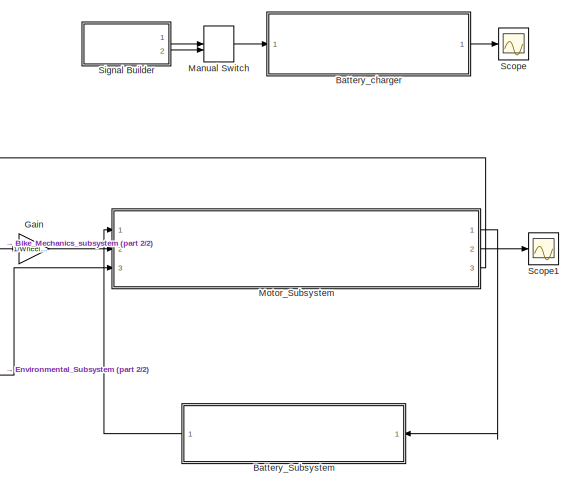
[diagram: root canvas - part 1/2, right side, full height]
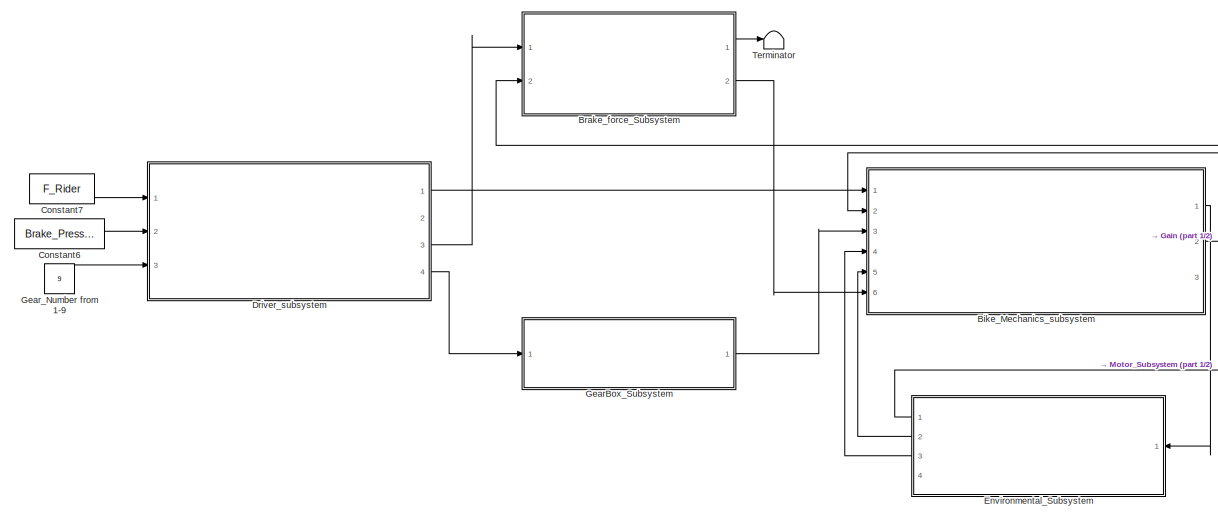
[diagram: root canvas - part 2/2, center side, full height]
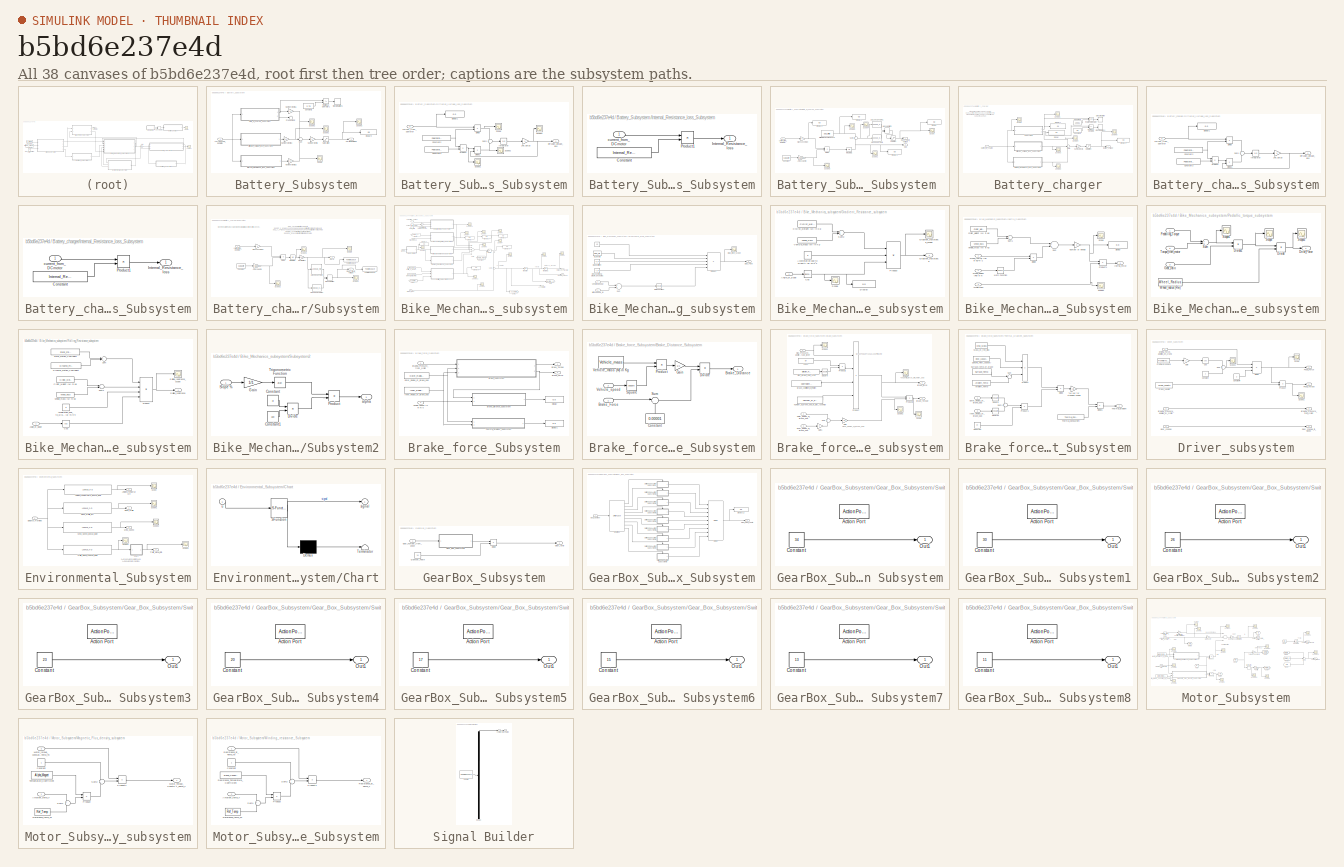
[diagram: thumbnail index - all 38 canvases of the model, root first then tree order]
MODEL slx_b5bd6e237e4d
KIND model
CONFIG AbsTol = auto
CONFIG EnableMultiTasking = off
CONFIG FixedStep = auto
CONFIG InitFcn = Rho_air= 1.225;\nC_d=0.9;\nA_d= 0.4;\nStatic_Friction_Coefficient =0.0015;\nDynamic_Friction_Coefficient= 0.0015;\nCyclist_weight=85;\nVehicle_mass = 5;\ng = 9.81;\nWheel_Inertia = 0.45;\nBb=0.2;\nWheel_Radius = 0.3;\nF_Rider = 100;\nBrake_Pressure = 0;\nCrank_Length = 0.150;\nAngle_of_crank = [0:1:360;0:1:360;]';\nNumber_of_brake_pad = 2;\nCoefficient_of_Brake_friction = 0.9;\nEffective_Radius_of_Disc = 0.16;\nOut...<+625ch>
CONFIG MaxStep = auto
CONFIG MinStep = auto
CONFIG RelTol = 1e-3
CONFIG SampleTimeConstraint = Unconstrained
CONFIG Solver = VariableStepAuto
CONFIG SolverName = VariableStepAuto
CONFIG StartTime = 0.0
CONFIG StopTime = 1000
BLOCK [SubSystem] Battery_Subsystem
  Ports = [1, 1]
  RequestExecContextInheritance = off
BLOCK [Constant] Battery_Subsystem/Constant2
  Value = 2.75
BLOCK [SubSystem] Battery_Subsystem/Diffusion_Voltage_loss_Subsystem
  Ports = [1, 1]
  RequestExecContextInheritance = off
BLOCK [Gain] Battery_Subsystem/Diffusion_Voltage_loss_Subsystem/1RC Setup
  OutDataTypeStr = Inherit: Inherit via internal rule
  ParamDataTypeStr = Inherit: Inherit via internal rule
  SaturateOnIntegerOverflow = off
BLOCK [Constant] Battery_Subsystem/Diffusion_Voltage_loss_Subsystem/Constant2
  SampleTime = -1
  Value = Polarization_Capacitance
BLOCK [Constant] Battery_Subsystem/Diffusion_Voltage_loss_Subsystem/Constant3
  SampleTime = -1
  Value = Polarization_Resistance
BLOCK [Outport] Battery_Subsystem/Diffusion_Voltage_loss_Subsystem/Diffusion_Voltage_loss
  IconDisplay = Port number
  VectorParamsAs1DForOutWhenUnconnected = off
BLOCK [Display] Battery_Subsystem/Diffusion_Voltage_loss_Subsystem/Display1
  Decimation = 1
  Ports = [1]
BLOCK [Product] Battery_Subsystem/Diffusion_Voltage_loss_Subsystem/Divide
  InputSameDT = off
  Inputs = */
  OutDataTypeStr = Inherit: Inherit via internal rule
  Ports = [2, 1]
  RndMeth = Floor
  SaturateOnIntegerOverflow = off
BLOCK [Product] Battery_Subsystem/Diffusion_Voltage_loss_Subsystem/Divide1
  InputSameDT = off
  Inputs = /*
  OutDataTypeStr = Inherit: Inherit via internal rule
  Ports = [2, 1]
  RndMeth = Floor
  SaturateOnIntegerOverflow = off
BLOCK [Integrator] Battery_Subsystem/Diffusion_Voltage_loss_Subsystem/Integrator
  Ports = [1, 1]
BLOCK [Product] Battery_Subsystem/Diffusion_Voltage_loss_Subsystem/Product
  InputSameDT = off
  OutDataTypeStr = Inherit: Inherit via internal rule
  Ports = [2, 1]
  RndMeth = Floor
  SaturateOnIntegerOverflow = off
BLOCK [Scope] Battery_Subsystem/Diffusion_Voltage_loss_Subsystem/Scope
  Floating = off
  NumInputPorts = 1
  Ports = [1]
  ScopeSpecificationString = Simulink.scopes.TimeScopeBlockCfg('CurrentConfiguration', extmgr.ConfigurationSet(extmgr.Configuration('Core','General UI',true),extmgr.Configuration('Core','Source UI',true),extmgr.Configuration('Sources','WiredSimulink',true,'DataLoggingVariableName','ScopeData1'),extmgr.Configuration('Visuals','Time Domain',true,'SerializedDisplays',{struct('MinYLimReal','34000000.00000','MaxYLimReal','54000000...<+1419ch>
BLOCK [Scope] Battery_Subsystem/Diffusion_Voltage_loss_Subsystem/Scope1
  Floating = off
  NumInputPorts = 1
  Ports = [1]
  ScopeSpecificationString = Simulink.scopes.TimeScopeBlockCfg('CurrentConfiguration', extmgr.ConfigurationSet(extmgr.Configuration('Core','General UI',true),extmgr.Configuration('Core','Source UI',true),extmgr.Configuration('Sources','WiredSimulink',true,'DataLoggingVariableName','ScopeData2'),extmgr.Configuration('Visuals','Time Domain',true,'SerializedDisplays',{struct('MinYLimReal','0.00002','MaxYLimReal','0.00004','YLabe...<+1364ch>
BLOCK [Scope] Battery_Subsystem/Diffusion_Voltage_loss_Subsystem/Scope2
  Floating = off
  NumInputPorts = 1
  Ports = [1]
  ScopeSpecificationString = Simulink.scopes.TimeScopeBlockCfg('CurrentConfiguration', extmgr.ConfigurationSet(extmgr.Configuration('Core','General UI',true),extmgr.Configuration('Core','Source UI',true),extmgr.Configuration('Sources','WiredSimulink',true,'DataLoggingVariableName','ScopeData3'),extmgr.Configuration('Visuals','Time Domain',true,'SerializedDisplays',{struct('MinYLimReal','-5500295.46734','MaxYLimReal','49502659...<+1416ch>
BLOCK [Scope] Battery_Subsystem/Diffusion_Voltage_loss_Subsystem/Scope3
  Floating = off
  NumInputPorts = 1
  Ports = [1]
  ScopeSpecificationString = Simulink.scopes.TimeScopeBlockCfg('CurrentConfiguration', extmgr.ConfigurationSet(extmgr.Configuration('Core','General UI',true),extmgr.Configuration('Core','Source UI',true),extmgr.Configuration('Sources','WiredSimulink',true,'DataLoggingVariableName','ScopeData4'),extmgr.Configuration('Visuals','Time Domain',true,'SerializedDisplays',{struct('MinYLimReal','-165.00886','MaxYLimReal','1485.07978',...<+1386ch>
BLOCK [Sum] Battery_Subsystem/Diffusion_Voltage_loss_Subsystem/Sum1
  IconShape = round
  InputSameDT = off
  Inputs = +|-
  OutDataTypeStr = Inherit: Inherit via internal rule
  Ports = [2, 1]
  SaturateOnIntegerOverflow = off
BLOCK [Inport] Battery_Subsystem/Diffusion_Voltage_loss_Subsystem/current_from_DCmotor
  IconDisplay = Port number
BLOCK [Display] Battery_Subsystem/Display9
  Decimation = 1
  Ports = [1]
BLOCK [SubSystem] Battery_Subsystem/Internal_Resistance_loss_Subsystem
  Ports = [1, 1]
  RequestExecContextInheritance = off
BLOCK [Constant] Battery_Subsystem/Internal_Resistance_loss_Subsystem/Constant
  SampleTime = -1
  Value = Internal_Resistance
BLOCK [Outport] Battery_Subsystem/Internal_Resistance_loss_Subsystem/Internal_Resistance_loss
  IconDisplay = Port number
  VectorParamsAs1DForOutWhenUnconnected = off
BLOCK [Product] Battery_Subsystem/Internal_Resistance_loss_Subsystem/Product1
  InputSameDT = off
  OutDataTypeStr = Inherit: Inherit via internal rule
  Ports = [2, 1]
  RndMeth = Floor
  SaturateOnIntegerOverflow = off
BLOCK [Inport] Battery_Subsystem/Internal_Resistance_loss_Subsystem/current_from_DCmotor
  IconDisplay = Port number
BLOCK [Gain] Battery_Subsystem/Number of cells
  OutDataTypeStr = Inherit: Inherit via internal rule
  ParamDataTypeStr = Inherit: Inherit via internal rule
  SaturateOnIntegerOverflow = off
BLOCK [Gain] Battery_Subsystem/Number of cells1
  Gain = 10
  OutDataTypeStr = Inherit: Inherit via internal rule
  ParamDataTypeStr = Inherit: Inherit via internal rule
  SaturateOnIntegerOverflow = off
BLOCK [Gain] Battery_Subsystem/Number of cells2
  Gain = 10
  OutDataTypeStr = Inherit: Inherit via internal rule
  ParamDataTypeStr = Inherit: Inherit via internal rule
  SaturateOnIntegerOverflow = off
BLOCK [Gain] Battery_Subsystem/Number of cells3
  Gain = 10
  OutDataTypeStr = Inherit: Inherit via internal rule
  ParamDataTypeStr = Inherit: Inherit via internal rule
  SaturateOnIntegerOverflow = off
BLOCK [Terminator] Battery_Subsystem/Present SOC
BLOCK [RelationalOperator] Battery_Subsystem/Relational Operator1
  InputSameDT = off
  Operator = <=
  OutDataTypeStr = boolean
  Ports = [2, 1]
  RndMeth = Simplest
BLOCK [Saturate] Battery_Subsystem/Saturation
  InputPortMap = u0
  LowerLimit = 0
  Ports = [1, 1]
  UpperLimit = inf
BLOCK [Scope] Battery_Subsystem/Scope
  Floating = off
  NumInputPorts = 1
  Ports = [1]
  ScopeSpecificationString = Simulink.scopes.TimeScopeBlockCfg('CurrentConfiguration', extmgr.ConfigurationSet(extmgr.Configuration('Core','General UI',true),extmgr.Configuration('Core','Source UI',true),extmgr.Configuration('Sources','WiredSimulink',true,'DataLoggingVariableName','ScopeData1'),extmgr.Configuration('Visuals','Time Domain',true,'SerializedDisplays',{struct('MinYLimReal','2.96','MaxYLimReal','4.96','YLabelReal'...<+1409ch>
BLOCK [Scope] Battery_Subsystem/Scope1
  Floating = off
  NumInputPorts = 1
  Ports = [1]
  ScopeSpecificationString = Simulink.scopes.TimeScopeBlockCfg('CurrentConfiguration', extmgr.ConfigurationSet(extmgr.Configuration('Core','General UI',true),extmgr.Configuration('Core','Source UI',true),extmgr.Configuration('Sources','WiredSimulink',true,'DataLoggingVariableName','ScopeData2'),extmgr.Configuration('Visuals','Time Domain',true,'SerializedDisplays',{struct('MinYLimReal','-1649858.25227','MaxYLimReal','14848724...<+1469ch>
BLOCK [Scope] Battery_Subsystem/Scope2
  Floating = off
  NumInputPorts = 1
  Ports = [1]
  ScopeSpecificationString = Simulink.scopes.TimeScopeBlockCfg('CurrentConfiguration', extmgr.ConfigurationSet(extmgr.Configuration('Core','General UI',true),extmgr.Configuration('Core','Source UI',true),extmgr.Configuration('Sources','WiredSimulink',true,'DataLoggingVariableName','ScopeData3'),extmgr.Configuration('Visuals','Time Domain',true,'SerializedDisplays',{struct('MinYLimReal','39.95','MaxYLimReal','41.45','YLabelRea...<+1411ch>
BLOCK [Scope] Battery_Subsystem/Scope3
  Floating = off
  NumInputPorts = 1
  Ports = [1]
  ScopeSpecificationString = Simulink.scopes.TimeScopeBlockCfg('CurrentConfiguration', extmgr.ConfigurationSet(extmgr.Configuration('Core','General UI',true),extmgr.Configuration('Core','Source UI',true),extmgr.Configuration('Sources','WiredSimulink',true,'DataLoggingVariableName','ScopeData6'),extmgr.Configuration('Visuals','Time Domain',true,'SerializedDisplays',{struct('MinYLimReal','-1.4152','MaxYLimReal','38.7374','YLabe...<+1438ch>
BLOCK [SubSystem] Battery_Subsystem/State_of_Charge_Subsystem 
  Ports = [1, 2]
  RequestExecContextInheritance = off
BLOCK [Lookup_n-D] Battery_Subsystem/State_of_Charge_Subsystem /1-D Lookup Table
  BreakpointsForDimension1 = [10 12 15 20 30 45 60 75 85 95 100]
  InternalRulePriority = Speed
  NumberOfTableDimensions = 1
  Ports = [1, 1]
  RndMeth = Simplest
  Table = [2.75\n2.964\n3.233\n3.417\n3.65\n3.7\n3.789\n3.9269\n4.017\n4.147\n4.2\n]
BLOCK [Lookup_n-D] Battery_Subsystem/State_of_Charge_Subsystem /1-D Lookup Table1
  BreakpointsForDimension1 = [-0.02\n0.08\n0.18\n0.28\n0.38\n0.48\n0.58\n0.68\n0.78\n0.88\n0.98\n1.08\n1.18\n1.28\n1.38\n1.48\n1.58\n1.68\n1.78\n1.88\n1.98\n2.08\n2.18\n2.28\n2.38\n2.48\n2.58\n2.68\n2.78\n2.88\n2.98\n3.08\n3.18\n3.28\n3.38\n3.48\n3.58\n3.68\n3.78\n3.88\n3.98\n4.08\n4.18\n4.28\n4.38\n4.48\n4.58\n4.68\n4.78\n4.88\n4.98\n5.08\n5.18\n5.28\n5.38\n5.48\n5.58\n5.68\n5.78\n5.88\n5.98\n6.08\n6.19\n6.29\n6.39\n6.49\n6.59\n6.69\n6.79\n6.89\n6.99\n7.09\n7.19\n7.29\n7.39\n7.49\n7.59\n7.69\n7.79\n7.8...<+5502ch>
  InternalRulePriority = Speed
  NumberOfTableDimensions = 1
  Ports = [1, 1]
  RndMeth = Simplest
  Table = [2.69\n2.72\n2.74\n2.76\n2.79\n2.81\n2.83\n2.85\n2.87\n2.89\n2.91\n2.93\n2.95\n2.96\n2.98\n3.00\n3.01\n3.03\n3.04\n3.06\n3.07\n3.08\n3.10\n3.11\n3.12\n3.13\n3.14\n3.15\n3.16\n3.17\n3.18\n3.19\n3.20\n3.21\n3.22\n3.22\n3.23\n3.24\n3.24\n3.25\n3.26\n3.26\n3.27\n3.27\n3.28\n3.28\n3.29\n3.29\n3.29\n3.30\n3.30\n3.31\n3.31\n3.31\n3.31\n3.32\n3.32\n3.32\n3.32\n3.33\n3.33\n3.33\n3.33\n3.33\n3.33\n3.34\n3.34\n3.34\n3.34\n3.34\n3.34\n3.34\n3.35\n3.35\n3.35\n3.35\n3.35\n3.35\n3.35\n3.36...<+4602ch>
BLOCK [Gain] Battery_Subsystem/State_of_Charge_Subsystem /Ah to coulomb
  Gain = 3600
  OutDataTypeStr = Inherit: Inherit via internal rule
  ParamDataTypeStr = Inherit: Inherit via internal rule
  SaturateOnIntegerOverflow = off
BLOCK [Constant] Battery_Subsystem/State_of_Charge_Subsystem /Constant
  SampleTime = -1
  Value = capacity
BLOCK [Display] Battery_Subsystem/State_of_Charge_Subsystem /Display
  Decimation = 1
  Ports = [1]
BLOCK [Display] Battery_Subsystem/State_of_Charge_Subsystem /Display1
  Decimation = 1
  Ports = [1]
BLOCK [Display] Battery_Subsystem/State_of_Charge_Subsystem /Display2
  Decimation = 1
  Ports = [1]
BLOCK [Display] Battery_Subsystem/State_of_Charge_Subsystem /Display3
  Decimation = 1
  Ports = [1]
BLOCK [Product] Battery_Subsystem/State_of_Charge_Subsystem /Divide
  InputSameDT = off
  Inputs = */
  OutDataTypeStr = Inherit: Inherit via internal rule
  Ports = [2, 1]
  RndMeth = Floor
  SaturateOnIntegerOverflow = off
BLOCK [Constant] Battery_Subsystem/State_of_Charge_Subsystem /Initial State of charge (100%)
  SampleTime = -1
  Value = SOC_initial
BLOCK [Integrator] Battery_Subsystem/State_of_Charge_Subsystem /Integrator1
  Ports = [1, 1]
BLOCK [ManualSwitch] Battery_Subsystem/State_of_Charge_Subsystem /Manual Switch
BLOCK [Outport] Battery_Subsystem/State_of_Charge_Subsystem /Open_circuit_voltage
  IconDisplay = Port number
  VectorParamsAs1DForOutWhenUnconnected = off
BLOCK [Outport] Battery_Subsystem/State_of_Charge_Subsystem /SOC
  IconDisplay = Port number
  Port = 2
  VectorParamsAs1DForOutWhenUnconnected = off
BLOCK [Saturate] Battery_Subsystem/State_of_Charge_Subsystem /Saturation
  InputPortMap = u0
  LowerLimit = 0
  Ports = [1, 1]
  UpperLimit = inf
BLOCK [Scope] Battery_Subsystem/State_of_Charge_Subsystem /Scope
  Floating = off
  NumInputPorts = 1
  Ports = [1]
  ScopeSpecificationString = Simulink.scopes.TimeScopeBlockCfg('CurrentConfiguration', extmgr.ConfigurationSet(extmgr.Configuration('Core','General UI',true),extmgr.Configuration('Core','Source UI',true),extmgr.Configuration('Sources','WiredSimulink',true,'DataLoggingVariableName','ScopeData1'),extmgr.Configuration('Visuals','Time Domain',true,'SerializedDisplays',{struct('MinYLimReal','3.995','MaxYLimReal','4.145','YLabelRea...<+1451ch>
BLOCK [Scope] Battery_Subsystem/State_of_Charge_Subsystem /Scope1
  Floating = off
  NumInputPorts = 1
  Ports = [1]
  ScopeSpecificationString = Simulink.scopes.TimeScopeBlockCfg('CurrentConfiguration', extmgr.ConfigurationSet(extmgr.Configuration('Core','General UI',true),extmgr.Configuration('Core','Source UI',true),extmgr.Configuration('Sources','WiredSimulink',true,'DataLoggingVariableName','ScopeData2'),extmgr.Configuration('Visuals','Time Domain',true,'SerializedDisplays',{struct('MinYLimReal','-0.86806','MaxYLimReal','7.8125','YLabe...<+1466ch>
BLOCK [Scope] Battery_Subsystem/State_of_Charge_Subsystem /Scope2
  Floating = off
  NumInputPorts = 1
  Ports = [1]
  ScopeSpecificationString = Simulink.scopes.TimeScopeBlockCfg('CurrentConfiguration', extmgr.ConfigurationSet(extmgr.Configuration('Core','General UI',true),extmgr.Configuration('Core','Source UI',true),extmgr.Configuration('Sources','WiredSimulink',true,'DataLoggingVariableName','ScopeData3'),extmgr.Configuration('Visuals','Time Domain',true,'SerializedDisplays',{struct('MinYLimReal','90.00000','MaxYLimReal','110.00000','YL...<+1451ch>
BLOCK [Scope] Battery_Subsystem/State_of_Charge_Subsystem /Scope3
  Floating = off
  NumInputPorts = 1
  Ports = [1]
  ScopeSpecificationString = Simulink.scopes.TimeScopeBlockCfg('CurrentConfiguration', extmgr.ConfigurationSet(extmgr.Configuration('Core','General UI',true),extmgr.Configuration('Core','Source UI',true),extmgr.Configuration('Sources','WiredSimulink',true,'DataLoggingVariableName','ScopeData4'),extmgr.Configuration('Visuals','Time Domain',true,'SerializedDisplays',{struct('MinYLimReal','5840.00000','MaxYLimReal','25840.00000'...<+1458ch>
BLOCK [Scope] Battery_Subsystem/State_of_Charge_Subsystem /Scope4
  Floating = off
  NumInputPorts = 1
  Ports = [1]
  ScopeSpecificationString = Simulink.scopes.TimeScopeBlockCfg('CurrentConfiguration', extmgr.ConfigurationSet(extmgr.Configuration('Core','General UI',true),extmgr.Configuration('Core','Source UI',true),extmgr.Configuration('Sources','WiredSimulink',true,'DataLoggingVariableName','ScopeData7'),extmgr.Configuration('Visuals','Time Domain',true,'SerializedDisplays',{struct('MinYLimReal','92.1875','MaxYLimReal','100.86806','YLa...<+1469ch>
BLOCK [Gain] Battery_Subsystem/State_of_Charge_Subsystem /Sign conversion
  OutDataTypeStr = Inherit: Inherit via internal rule
  ParamDataTypeStr = Inherit: Inherit via internal rule
  SaturateOnIntegerOverflow = off
BLOCK [Sum] Battery_Subsystem/State_of_Charge_Subsystem /Sum2
  IconShape = round
  InputSameDT = off
  Inputs = +|-
  OutDataTypeStr = Inherit: Inherit via internal rule
  Ports = [2, 1]
  SaturateOnIntegerOverflow = off
BLOCK [Inport] Battery_Subsystem/State_of_Charge_Subsystem /current_from_DCmotor
  IconDisplay = Port number
BLOCK [Stop] Battery_Subsystem/Stop Simulation1
BLOCK [Sum] Battery_Subsystem/Sum
  IconShape = round
  InputSameDT = off
  Inputs = +--
  OutDataTypeStr = Inherit: Inherit via internal rule
  Ports = [3, 1]
  SaturateOnIntegerOverflow = off
BLOCK [Outport] Battery_Subsystem/Terminal Voltage
  IconDisplay = Port number
  VectorParamsAs1DForOutWhenUnconnected = off
BLOCK [Inport] Battery_Subsystem/current_from_DCmotor
  IconDisplay = Port number
BLOCK [SubSystem] Battery_charger
  Ports = [1, 1]
  RequestExecContextInheritance = off
BLOCK [Outport] Battery_charger/Battery_voltage
  IconDisplay = Port number
  VectorParamsAs1DForOutWhenUnconnected = off
BLOCK [Constant] Battery_charger/Constant1
  Value = 100.01
BLOCK [Constant] Battery_charger/Constant2
  Value = 2.5
BLOCK [Inport] Battery_charger/Current_to_charge
  IconDisplay = Port number
BLOCK [SubSystem] Battery_charger/Diffusion_Voltage_loss_Subsystem
  Ports = [1, 1]
  RequestExecContextInheritance = off
BLOCK [Gain] Battery_charger/Diffusion_Voltage_loss_Subsystem/1RC Setup
  OutDataTypeStr = Inherit: Inherit via internal rule
  ParamDataTypeStr = Inherit: Inherit via internal rule
  SaturateOnIntegerOverflow = off
BLOCK [Constant] Battery_charger/Diffusion_Voltage_loss_Subsystem/Constant2
  SampleTime = -1
  Value = Polarization_Capacitance
BLOCK [Constant] Battery_charger/Diffusion_Voltage_loss_Subsystem/Constant3
  SampleTime = -1
  Value = Polarization_Resistance
BLOCK [Outport] Battery_charger/Diffusion_Voltage_loss_Subsystem/Diffusion_Voltage_loss
  IconDisplay = Port number
  VectorParamsAs1DForOutWhenUnconnected = off
BLOCK [Display] Battery_charger/Diffusion_Voltage_loss_Subsystem/Display1
  Decimation = 1
  Ports = [1]
BLOCK [Product] Battery_charger/Diffusion_Voltage_loss_Subsystem/Divide
  InputSameDT = off
  Inputs = */
  OutDataTypeStr = Inherit: Inherit via internal rule
  Ports = [2, 1]
  RndMeth = Floor
  SaturateOnIntegerOverflow = off
BLOCK [Product] Battery_charger/Diffusion_Voltage_loss_Subsystem/Divide1
  InputSameDT = off
  Inputs = /*
  OutDataTypeStr = Inherit: Inherit via internal rule
  Ports = [2, 1]
  RndMeth = Floor
  SaturateOnIntegerOverflow = off
BLOCK [Integrator] Battery_charger/Diffusion_Voltage_loss_Subsystem/Integrator
  Ports = [1, 1]
BLOCK [Product] Battery_charger/Diffusion_Voltage_loss_Subsystem/Product
  InputSameDT = off
  OutDataTypeStr = Inherit: Inherit via internal rule
  Ports = [2, 1]
  RndMeth = Floor
  SaturateOnIntegerOverflow = off
BLOCK [Sum] Battery_charger/Diffusion_Voltage_loss_Subsystem/Sum1
  IconShape = round
  InputSameDT = off
  Inputs = +|-
  OutDataTypeStr = Inherit: Inherit via internal rule
  Ports = [2, 1]
  SaturateOnIntegerOverflow = off
BLOCK [Inport] Battery_charger/Diffusion_Voltage_loss_Subsystem/current_from_DCmotor
  IconDisplay = Port number
BLOCK [Display] Battery_charger/Display
  Decimation = 1
  Ports = [1]
BLOCK [Display] Battery_charger/Display1
  Decimation = 1
  Ports = [1]
BLOCK [Display] Battery_charger/Display9
  Decimation = 1
  Ports = [1]
BLOCK [SubSystem] Battery_charger/Internal_Resistance_loss_Subsystem
  Ports = [1, 1]
  RequestExecContextInheritance = off
BLOCK [Constant] Battery_charger/Internal_Resistance_loss_Subsystem/Constant
  SampleTime = -1
  Value = Internal_Resistance
BLOCK [Outport] Battery_charger/Internal_Resistance_loss_Subsystem/Internal_Resistance_loss
  IconDisplay = Port number
  VectorParamsAs1DForOutWhenUnconnected = off
BLOCK [Product] Battery_charger/Internal_Resistance_loss_Subsystem/Product1
  InputSameDT = off
  OutDataTypeStr = Inherit: Inherit via internal rule
  Ports = [2, 1]
  RndMeth = Floor
  SaturateOnIntegerOverflow = off
BLOCK [Inport] Battery_charger/Internal_Resistance_loss_Subsystem/current_from_DCmotor
  IconDisplay = Port number
BLOCK [Gain] Battery_charger/Number of cells
  Gain = 10
  OutDataTypeStr = Inherit: Inherit via internal rule
  ParamDataTypeStr = Inherit: Inherit via internal rule
  SaturateOnIntegerOverflow = off
BLOCK [RelationalOperator] Battery_charger/Relational Operator
  InputSameDT = off
  OutDataTypeStr = boolean
  Ports = [2, 1]
  RndMeth = Simplest
BLOCK [RelationalOperator] Battery_charger/Relational Operator1
  InputSameDT = off
  Operator = <=
  OutDataTypeStr = boolean
  Ports = [2, 1]
  RndMeth = Simplest
BLOCK [Saturate] Battery_charger/Saturation
  InputPortMap = u0
  LowerLimit = 0
  Ports = [1, 1]
  UpperLimit = inf
BLOCK [Scope] Battery_charger/Scope
  Floating = off
  NumInputPorts = 1
  Ports = [1]
  ScopeSpecificationString = Simulink.scopes.TimeScopeBlockCfg('CurrentConfiguration', extmgr.ConfigurationSet(extmgr.Configuration('Core','General UI',true),extmgr.Configuration('Core','Source UI',true),extmgr.Configuration('Sources','WiredSimulink',true,'DataLoggingVariableName','ScopeData2'),extmgr.Configuration('Visuals','Time Domain',true,'SerializedDisplays',{struct('MinYLimReal','-0.046','MaxYLimReal','-0.026','YLabelR...<+1413ch>
BLOCK [Scope] Battery_charger/Scope1
  Floating = off
  NumInputPorts = 1
  Ports = [1]
  ScopeSpecificationString = Simulink.scopes.TimeScopeBlockCfg('CurrentConfiguration', extmgr.ConfigurationSet(extmgr.Configuration('Core','General UI',true),extmgr.Configuration('Core','Source UI',true),extmgr.Configuration('Sources','WiredSimulink',true,'DataLoggingVariableName','ScopeData3'),extmgr.Configuration('Visuals','Time Domain',true,'SerializedDisplays',{struct('MinYLimReal','-12.50102','MaxYLimReal','112.50914','Y...<+1432ch>
BLOCK [Scope] Battery_charger/Scope2
  Floating = off
  NumInputPorts = 1
  Ports = [1]
  ScopeSpecificationString = Simulink.scopes.TimeScopeBlockCfg('CurrentConfiguration', extmgr.ConfigurationSet(extmgr.Configuration('Core','General UI',true),extmgr.Configuration('Core','Source UI',true),extmgr.Configuration('Sources','WiredSimulink',true,'DataLoggingVariableName','ScopeData4'),extmgr.Configuration('Visuals','Time Domain',true,'SerializedDisplays',{struct('MinYLimReal','-0.00442','MaxYLimReal','-0.00242','YLa...<+1539ch>
BLOCK [Scope] Battery_charger/Scope3
  Floating = off
  NumInputPorts = 1
  Ports = [1]
  ScopeSpecificationString = Simulink.scopes.TimeScopeBlockCfg('CurrentConfiguration', extmgr.ConfigurationSet(extmgr.Configuration('Core','General UI',true),extmgr.Configuration('Core','Source UI',true),extmgr.Configuration('Sources','WiredSimulink',true,'DataLoggingVariableName','ScopeData5'),extmgr.Configuration('Visuals','Time Domain',true,'SerializedDisplays',{struct('MinYLimReal','-0.00665','MaxYLimReal','0.00237','YLab...<+1435ch>
BLOCK [Scope] Battery_charger/Scope4
  Floating = off
  NumInputPorts = 1
  Ports = [1]
  ScopeSpecificationString = Simulink.scopes.TimeScopeBlockCfg('CurrentConfiguration', extmgr.ConfigurationSet(extmgr.Configuration('Core','General UI',true),extmgr.Configuration('Core','Source UI',true),extmgr.Configuration('Sources','WiredSimulink',true,'DataLoggingVariableName','ScopeData1'),extmgr.Configuration('Visuals','Time Domain',true,'SerializedDisplays',{struct('MinYLimReal','2.56875','MaxYLimReal','4.38125','YLabe...<+1393ch>
BLOCK [Scope] Battery_charger/Scope5
  Floating = off
  NumInputPorts = 1
  Ports = [1]
  ScopeSpecificationString = Simulink.scopes.TimeScopeBlockCfg('CurrentConfiguration', extmgr.ConfigurationSet(extmgr.Configuration('Core','General UI',true),extmgr.Configuration('Core','Source UI',true),extmgr.Configuration('Sources','WiredSimulink',true,'DataLoggingVariableName','ScopeData7'),extmgr.Configuration('Visuals','Time Domain',true,'SerializedDisplays',{struct('MinYLimReal','25.7559','MaxYLimReal','43.8809','YLabe...<+1438ch>
BLOCK [Stop] Battery_charger/Stop Simulation
BLOCK [Stop] Battery_charger/Stop Simulation1
BLOCK [SubSystem] Battery_charger/Subsystem
  Ports = [1, 2]
  RequestExecContextInheritance = off
BLOCK [Lookup_n-D] Battery_charger/Subsystem/1-D Lookup Table
  BreakpointsForDimension1 = [10 12 15 20 30 45 60 75 85 95 100]
  InternalRulePriority = Speed
  NumberOfTableDimensions = 1
  Ports = [1, 1]
  RndMeth = Simplest
  Table = [2.75\n2.964\n3.233\n3.417\n3.65\n3.7\n3.789\n3.9269\n4.017\n4.147\n4.2\n]
BLOCK [Lookup_n-D] Battery_charger/Subsystem/1-D Lookup Table1
  BreakpointsForDimension1 = [-0.02\n0.08\n0.18\n0.28\n0.38\n0.48\n0.58\n0.68\n0.78\n0.88\n0.98\n1.08\n1.18\n1.28\n1.38\n1.48\n1.58\n1.68\n1.78\n1.88\n1.98\n2.08\n2.18\n2.28\n2.38\n2.48\n2.58\n2.68\n2.78\n2.88\n2.98\n3.08\n3.18\n3.28\n3.38\n3.48\n3.58\n3.68\n3.78\n3.88\n3.98\n4.08\n4.18\n4.28\n4.38\n4.48\n4.58\n4.68\n4.78\n4.88\n4.98\n5.08\n5.18\n5.28\n5.38\n5.48\n5.58\n5.68\n5.78\n5.88\n5.98\n6.08\n6.19\n6.29\n6.39\n6.49\n6.59\n6.69\n6.79\n6.89\n6.99\n7.09\n7.19\n7.29\n7.39\n7.49\n7.59\n7.69\n7.79\n7.8...<+5502ch>
  InternalRulePriority = Speed
  NumberOfTableDimensions = 1
  Ports = [1, 1]
  RndMeth = Simplest
  Table = [2.69\n2.72\n2.74\n2.76\n2.79\n2.81\n2.83\n2.85\n2.87\n2.89\n2.91\n2.93\n2.95\n2.96\n2.98\n3.00\n3.01\n3.03\n3.04\n3.06\n3.07\n3.08\n3.10\n3.11\n3.12\n3.13\n3.14\n3.15\n3.16\n3.17\n3.18\n3.19\n3.20\n3.21\n3.22\n3.22\n3.23\n3.24\n3.24\n3.25\n3.26\n3.26\n3.27\n3.27\n3.28\n3.28\n3.29\n3.29\n3.29\n3.30\n3.30\n3.31\n3.31\n3.31\n3.31\n3.32\n3.32\n3.32\n3.32\n3.33\n3.33\n3.33\n3.33\n3.33\n3.33\n3.34\n3.34\n3.34\n3.34\n3.34\n3.34\n3.34\n3.35\n3.35\n3.35\n3.35\n3.35\n3.35\n3.35\n3.36...<+4602ch>
BLOCK [Gain] Battery_charger/Subsystem/Ah to coulomb
  Gain = 3600
  OutDataTypeStr = Inherit: Inherit via internal rule
  ParamDataTypeStr = Inherit: Inherit via internal rule
  SaturateOnIntegerOverflow = off
BLOCK [Constant] Battery_charger/Subsystem/Constant
  Value = capacity
BLOCK [Gain] Battery_charger/Subsystem/Decimal to %
  Gain = 100
  OutDataTypeStr = Inherit: Inherit via internal rule
  ParamDataTypeStr = Inherit: Inherit via internal rule
  SaturateOnIntegerOverflow = off
BLOCK [Product] Battery_charger/Subsystem/Divide
  InputSameDT = off
  Inputs = */
  OutDataTypeStr = Inherit: Inherit via internal rule
  Ports = [2, 1]
  RndMeth = Floor
  SaturateOnIntegerOverflow = off
BLOCK [Integrator] Battery_charger/Subsystem/Integrator
  InitialCondition = bp.SOC0_pct/100
  Ports = [1, 1]
BLOCK [ManualSwitch] Battery_charger/Subsystem/Manual Switch
  CurrentSetting = 0
BLOCK [Outport] Battery_charger/Subsystem/Open_circuit_Voltage
  IconDisplay = Port number
  Port = 2
BLOCK [Scope] Battery_charger/Subsystem/Scope
  Floating = off
  NumInputPorts = 1
  Ports = [1]
  ScopeSpecificationString = Simulink.scopes.TimeScopeBlockCfg('CurrentConfiguration', extmgr.ConfigurationSet(extmgr.Configuration('Core','General UI',true),extmgr.Configuration('Core','Source UI',true),extmgr.Configuration('Sources','WiredSimulink',true),extmgr.Configuration('Visuals','Time Domain',true,'SerializedDisplays',{struct('MinYLimReal','-0.15249','MaxYLimReal','1.37243','YLabelReal','','MinYLimMag','0.00000','MaxY...<+1403ch>
BLOCK [Scope] Battery_charger/Subsystem/Scope1
  Floating = off
  NumInputPorts = 1
  Ports = [1]
  ScopeSpecificationString = Simulink.scopes.TimeScopeBlockCfg('CurrentConfiguration', extmgr.ConfigurationSet(extmgr.Configuration('Core','General UI',true),extmgr.Configuration('Core','Source UI',true),extmgr.Configuration('Sources','WiredSimulink',true,'DataLoggingVariableName','ScopeData1'),extmgr.Configuration('Visuals','Time Domain',true,'SerializedDisplays',{struct('MinYLimReal','2.51663','MaxYLimReal','4.31038','YLabe...<+1441ch>
BLOCK [Scope] Battery_charger/Subsystem/Scope2
  Floating = off
  NumInputPorts = 1
  Ports = [1]
  ScopeSpecificationString = Simulink.scopes.TimeScopeBlockCfg('CurrentConfiguration', extmgr.ConfigurationSet(extmgr.Configuration('Core','General UI',true),extmgr.Configuration('Core','Source UI',true),extmgr.Configuration('Sources','WiredSimulink',true,'DataLoggingVariableName','ScopeData2'),extmgr.Configuration('Visuals','Time Domain',true),extmgr.Configuration('Tools','Plot Navigation',true),extmgr.Configuration('Tools',...<+40ch>
BLOCK [Scope] Battery_charger/Subsystem/Scope3
  Floating = off
  NumInputPorts = 1
  Ports = [1]
  ScopeSpecificationString = Simulink.scopes.TimeScopeBlockCfg('CurrentConfiguration', extmgr.ConfigurationSet(extmgr.Configuration('Core','General UI',true),extmgr.Configuration('Core','Source UI',true),extmgr.Configuration('Sources','WiredSimulink',true,'DataLoggingVariableName','ScopeData1'),extmgr.Configuration('Visuals','Time Domain',true,'SerializedDisplays',{struct('MinYLimReal','-0.12501','MaxYLimReal','1.12511','YLab...<+1394ch>
BLOCK [Gain] Battery_charger/Subsystem/Sign conversion
  OutDataTypeStr = Inherit: Inherit via internal rule
  ParamDataTypeStr = Inherit: Inherit via internal rule
  SaturateOnIntegerOverflow = off
BLOCK [Outport] Battery_charger/Subsystem/Soc %
  IconDisplay = Port number
BLOCK [ToWorkspace] Battery_charger/Subsystem/To Workspace
  FixptAsFi = on
  MaxDataPoints = inf
  Ports = [1]
  SampleTime = -1
  SaveFormat = Timeseries
  VariableName = soc
BLOCK [ToWorkspace] Battery_charger/Subsystem/To Workspace1
  FixptAsFi = on
  MaxDataPoints = inf
  Ports = [1]
  SampleTime = -1
  SaveFormat = Timeseries
  VariableName = V
BLOCK [Inport] Battery_charger/Subsystem/current_from_DCmotor
  IconDisplay = Port number
BLOCK [Sum] Battery_charger/Sum
  IconShape = round
  InputSameDT = off
  Inputs = +--
  OutDataTypeStr = Inherit: Inherit via internal rule
  Ports = [3, 1]
  SaturateOnIntegerOverflow = off
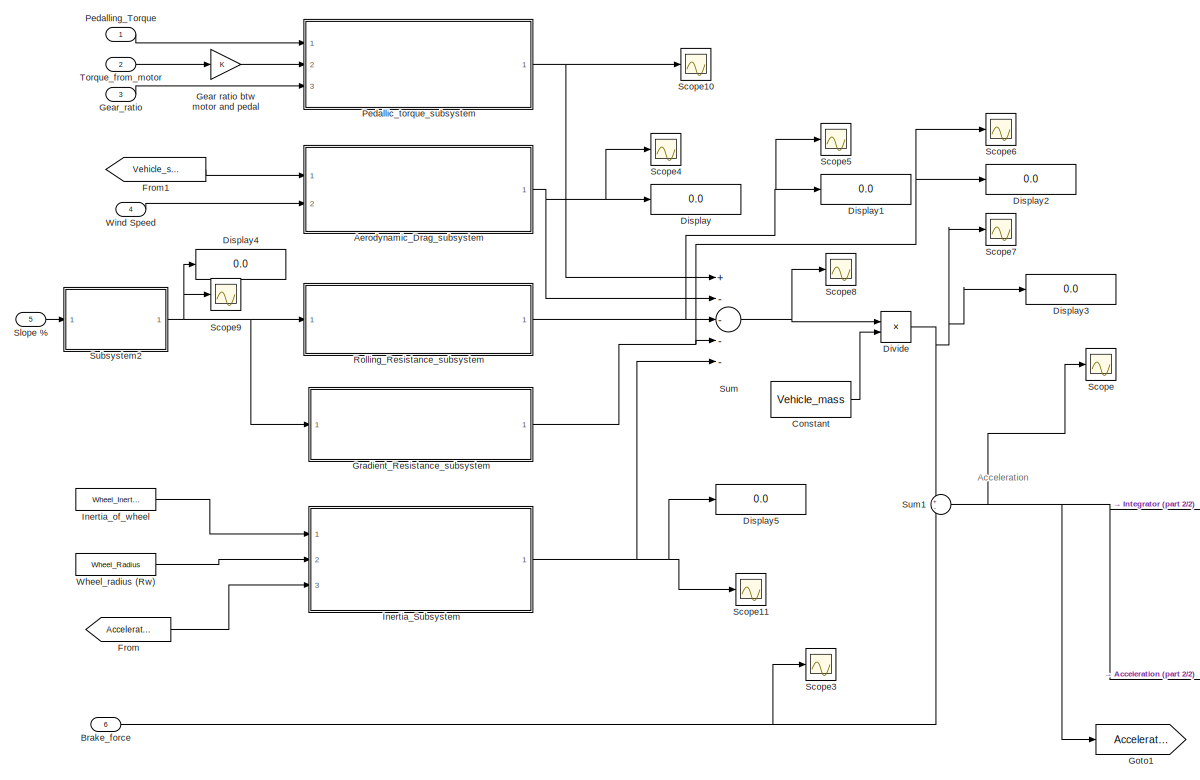
[diagram: Bike_Mechanics_subsystem - part 1/2, center side, full height]
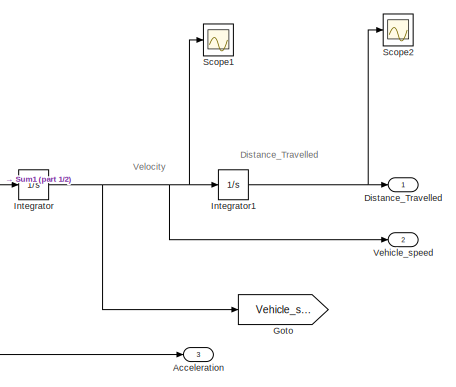
[diagram: Bike_Mechanics_subsystem - part 2/2, middle right region]
BLOCK [SubSystem] Bike_Mechanics_subsystem
  Ports = [6, 3]
  RequestExecContextInheritance = off
BLOCK [Outport] Bike_Mechanics_subsystem/Acceleration
  IconDisplay = Port number
  Port = 3
  VectorParamsAs1DForOutWhenUnconnected = off
BLOCK [SubSystem] Bike_Mechanics_subsystem/Aerodynamic_Drag_subsystem
  Ports = [2, 1]
  RequestExecContextInheritance = off
BLOCK [Constant] Bike_Mechanics_subsystem/Aerodynamic_Drag_subsystem/.
  Value = 1/2
BLOCK [Constant] Bike_Mechanics_subsystem/Aerodynamic_Drag_subsystem/Air_density
  Value = Rho_air
BLOCK [Constant] Bike_Mechanics_subsystem/Aerodynamic_Drag_subsystem/Cross sectional area//Reference area
  Value = A_d
BLOCK [Constant] Bike_Mechanics_subsystem/Aerodynamic_Drag_subsystem/Drag Coeffient
  Value = C_d
BLOCK [Outport] Bike_Mechanics_subsystem/Aerodynamic_Drag_subsystem/Drag_Force 
  IconDisplay = Port number
  VectorParamsAs1DForOutWhenUnconnected = off
BLOCK [Scope] Bike_Mechanics_subsystem/Aerodynamic_Drag_subsystem/Drag_force_scope
  Floating = off
  NumInputPorts = 1
  Ports = [1]
  ScopeSpecificationString = Simulink.scopes.TimeScopeBlockCfg('CurrentConfiguration', extmgr.ConfigurationSet(extmgr.Configuration('Core','General UI',true),extmgr.Configuration('Core','Source UI',true),extmgr.Configuration('Sources','WiredSimulink',true),extmgr.Configuration('Visuals','Time Domain',true,'SerializedDisplays',{struct('MinYLimReal','-15.95536','MaxYLimReal','143.59825','YLabelReal','','MinYLimMag','0.00000','M...<+1337ch>
BLOCK [Math] Bike_Mechanics_subsystem/Aerodynamic_Drag_subsystem/Math Function1
  Operator = square
  Ports = [1, 1]
BLOCK [Product] Bike_Mechanics_subsystem/Aerodynamic_Drag_subsystem/Product
  InputSameDT = off
  Inputs = 5
  OutDataTypeStr = Inherit: Inherit via internal rule
  Ports = [5, 1]
  RndMeth = Floor
  SaturateOnIntegerOverflow = off
BLOCK [Sum] Bike_Mechanics_subsystem/Aerodynamic_Drag_subsystem/Sum
  InputSameDT = off
  OutDataTypeStr = Inherit: Inherit via internal rule
  Ports = [2, 1]
  SaturateOnIntegerOverflow = off
BLOCK [Inport] Bike_Mechanics_subsystem/Aerodynamic_Drag_subsystem/Vehicle Speed (V)
  IconDisplay = Port number
BLOCK [Inport] Bike_Mechanics_subsystem/Aerodynamic_Drag_subsystem/Wind Speed (V_w) 
  IconDisplay = Port number
  Port = 2
BLOCK [Inport] Bike_Mechanics_subsystem/Brake_force 
  IconDisplay = Port number
  Port = 6
BLOCK [Constant] Bike_Mechanics_subsystem/Constant
  Value = Vehicle_mass
BLOCK [Display] Bike_Mechanics_subsystem/Display
  Decimation = 1
  Format = long
  Ports = [1]
BLOCK [Display] Bike_Mechanics_subsystem/Display1
  Decimation = 1
  Ports = [1]
BLOCK [Display] Bike_Mechanics_subsystem/Display2
  Decimation = 1
  Ports = [1]
BLOCK [Display] Bike_Mechanics_subsystem/Display3
  Decimation = 1
  Ports = [1]
BLOCK [Display] Bike_Mechanics_subsystem/Display4
  Decimation = 1
  Ports = [1]
BLOCK [Display] Bike_Mechanics_subsystem/Display5
  Decimation = 1
  Ports = [1]
BLOCK [Outport] Bike_Mechanics_subsystem/Distance_Travelled
  IconDisplay = Port number
  VectorParamsAs1DForOutWhenUnconnected = off
BLOCK [Product] Bike_Mechanics_subsystem/Divide
  InputSameDT = off
  Inputs = */
  OutDataTypeStr = Inherit: Inherit via internal rule
  Ports = [2, 1]
  RndMeth = Floor
  SaturateOnIntegerOverflow = off
BLOCK [From] Bike_Mechanics_subsystem/From
  GotoTag = Acceleration
BLOCK [From] Bike_Mechanics_subsystem/From1
  GotoTag = Vehicle_speed
BLOCK [Gain] Bike_Mechanics_subsystem/Gear ratio btw motor and pedal
  OutDataTypeStr = Inherit: Inherit via internal rule
  ParamDataTypeStr = Inherit: Inherit via internal rule
  SaturateOnIntegerOverflow = off
BLOCK [Inport] Bike_Mechanics_subsystem/Gear_ratio
  IconDisplay = Port number
  Port = 3
BLOCK [Goto] Bike_Mechanics_subsystem/Goto
  GotoTag = Vehicle_speed
BLOCK [Goto] Bike_Mechanics_subsystem/Goto1
  GotoTag = Acceleration
BLOCK [SubSystem] Bike_Mechanics_subsystem/Gradient_Resistance_subsystem
  Ports = [1, 1]
  RequestExecContextInheritance = off
BLOCK [Constant] Bike_Mechanics_subsystem/Gradient_Resistance_subsystem/Acceleration due to Gravity (g) m//s^2
  Value = g
BLOCK [Inport] Bike_Mechanics_subsystem/Gradient_Resistance_subsystem/Angle_of_slope
  IconDisplay = Port number
BLOCK [Trigonometry] Bike_Mechanics_subsystem/Gradient_Resistance_subsystem/Cos
  Ports = [1, 1]
BLOCK [Constant] Bike_Mechanics_subsystem/Gradient_Resistance_subsystem/Cyclist_weight (M) in Kg
  Value = Cyclist_weight
BLOCK [Display] Bike_Mechanics_subsystem/Gradient_Resistance_subsystem/Display
  Decimation = 1
  Ports = [1]
BLOCK [Outport] Bike_Mechanics_subsystem/Gradient_Resistance_subsystem/Gradient_resistance
  IconDisplay = Port number
  VectorParamsAs1DForOutWhenUnconnected = off
BLOCK [Scope] Bike_Mechanics_subsystem/Gradient_Resistance_subsystem/Gradient_resistance_scope
  Floating = off
  NumInputPorts = 1
  Ports = [1]
  ScopeSpecificationString = Simulink.scopes.TimeScopeBlockCfg('CurrentConfiguration', extmgr.ConfigurationSet(extmgr.Configuration('Core','General UI',true),extmgr.Configuration('Core','Source UI',true),extmgr.Configuration('Sources','WiredSimulink',true),extmgr.Configuration('Visuals','Time Domain',true,'SerializedDisplays',{struct('MinYLimReal','2.04176','MaxYLimReal','4.04176','YLabelReal','','MinYLimMag','2.04176','MaxYL...<+1325ch>
BLOCK [Product] Bike_Mechanics_subsystem/Gradient_Resistance_subsystem/Product
  InputSameDT = off
  Inputs = 3
  OutDataTypeStr = Inherit: Inherit via internal rule
  Ports = [3, 1]
  RndMeth = Floor
  SaturateOnIntegerOverflow = off
BLOCK [Scope] Bike_Mechanics_subsystem/Gradient_Resistance_subsystem/Scope
  Floating = off
  NumInputPorts = 1
  Ports = [1]
  ScopeSpecificationString = Simulink.scopes.TimeScopeBlockCfg('CurrentConfiguration', extmgr.ConfigurationSet(extmgr.Configuration('Core','General UI',true),extmgr.Configuration('Core','Source UI',true),extmgr.Configuration('Sources','WiredSimulink',true,'DataLoggingVariableName','ScopeData15'),extmgr.Configuration('Visuals','Time Domain',true),extmgr.Configuration('Tools','Plot Navigation',true),extmgr.Configuration('Tools'...<+41ch>
BLOCK [Sum] Bike_Mechanics_subsystem/Gradient_Resistance_subsystem/Sum2
  InputSameDT = off
  OutDataTypeStr = Inherit: Inherit via internal rule
  Ports = [2, 1]
  SaturateOnIntegerOverflow = off
BLOCK [Constant] Bike_Mechanics_subsystem/Gradient_Resistance_subsystem/Vehicle_mass (M) in Kg
  Value = Vehicle_mass
BLOCK [SubSystem] Bike_Mechanics_subsystem/Inertia_Subsystem
  Ports = [3, 1]
  RequestExecContextInheritance = off
BLOCK [Inport] Bike_Mechanics_subsystem/Inertia_Subsystem/Acceleration
  IconDisplay = Port number
  Port = 3
BLOCK [Constant] Bike_Mechanics_subsystem/Inertia_Subsystem/Cyclist_weight (M) in Kg
  Value = Cyclist_weight
BLOCK [Display] Bike_Mechanics_subsystem/Inertia_Subsystem/Display
  Decimation = 1
  Ports = [1]
BLOCK [Product] Bike_Mechanics_subsystem/Inertia_Subsystem/Divide
  InputSameDT = off
  Inputs = */
  OutDataTypeStr = Inherit: Inherit via internal rule
  Ports = [2, 1]
  RndMeth = Floor
  SaturateOnIntegerOverflow = off
BLOCK [Outport] Bike_Mechanics_subsystem/Inertia_Subsystem/Inertia_Force
  IconDisplay = Port number
BLOCK [Math] Bike_Mechanics_subsystem/Inertia_Subsystem/Math Function
  Operator = square
  Ports = [1, 1]
BLOCK [Gain] Bike_Mechanics_subsystem/Inertia_Subsystem/Number of wheels
  OutDataTypeStr = Inherit: Inherit via internal rule
  ParamDataTypeStr = Inherit: Inherit via internal rule
  SaturateOnIntegerOverflow = off
BLOCK [Product] Bike_Mechanics_subsystem/Inertia_Subsystem/Product1
  InputSameDT = off
  OutDataTypeStr = Inherit: Inherit via internal rule
  Ports = [2, 1]
  RndMeth = Floor
  SaturateOnIntegerOverflow = off
BLOCK [Scope] Bike_Mechanics_subsystem/Inertia_Subsystem/Scope
  Floating = off
  NumInputPorts = 1
  Ports = [1]
  ScopeSpecificationString = Simulink.scopes.TimeScopeBlockCfg('CurrentConfiguration', extmgr.ConfigurationSet(extmgr.Configuration('Core','General UI',true),extmgr.Configuration('Core','Source UI',true),extmgr.Configuration('Sources','WiredSimulink',true,'DataLoggingVariableName','ScopeData10'),extmgr.Configuration('Visuals','Time Domain',true,'SerializedDisplays',{struct('MinYLimReal','90.00000','MaxYLimReal','290.00000','Y...<+1387ch>
BLOCK [Scope] Bike_Mechanics_subsystem/Inertia_Subsystem/Scope1
  Floating = off
  NumInputPorts = 1
  Ports = [1]
  ScopeSpecificationString = Simulink.scopes.TimeScopeBlockCfg('CurrentConfiguration', extmgr.ConfigurationSet(extmgr.Configuration('Core','General UI',true),extmgr.Configuration('Core','Source UI',true),extmgr.Configuration('Sources','WiredSimulink',true,'DataLoggingVariableName','ScopeData11'),extmgr.Configuration('Visuals','Time Domain',true,'SerializedDisplays',{struct('MinYLimReal','73.33333','MaxYLimReal','93.33333','YL...<+1378ch>
BLOCK [Sum] Bike_Mechanics_subsystem/Inertia_Subsystem/Sum
  InputSameDT = off
  OutDataTypeStr = Inherit: Inherit via internal rule
  Ports = [2, 1]
  SaturateOnIntegerOverflow = off
BLOCK [Sum] Bike_Mechanics_subsystem/Inertia_Subsystem/Sum1
  InputSameDT = off
  OutDataTypeStr = Inherit: Inherit via internal rule
  Ports = [2, 1]
  SaturateOnIntegerOverflow = off
BLOCK [Constant] Bike_Mechanics_subsystem/Inertia_Subsystem/Vehicle_mass (M) in Kg
  Value = Vehicle_mass
BLOCK [Inport] Bike_Mechanics_subsystem/Inertia_Subsystem/Wheel_Inertia (Iw) in Kg*m^2
  IconDisplay = Port number
BLOCK [Inport] Bike_Mechanics_subsystem/Inertia_Subsystem/Wheel_Radius (Rw) in m
  IconDisplay = Port number
  Port = 2
BLOCK [Constant] Bike_Mechanics_subsystem/Inertia_of_wheel
  Value = Wheel_Inertia
BLOCK [Integrator] Bike_Mechanics_subsystem/Integrator
  Ports = [1, 1]
BLOCK [Integrator] Bike_Mechanics_subsystem/Integrator1
  Ports = [1, 1]
BLOCK [SubSystem] Bike_Mechanics_subsystem/Pedallic_torque_subsystem
  Ports = [3, 1]
  RequestExecContextInheritance = off
BLOCK [Product] Bike_Mechanics_subsystem/Pedallic_torque_subsystem/Divide
  InputSameDT = off
  Inputs = */
  OutDataTypeStr = Inherit: Inherit via internal rule
  Ports = [2, 1]
  RndMeth = Floor
  SaturateOnIntegerOverflow = off
BLOCK [Product] Bike_Mechanics_subsystem/Pedallic_torque_subsystem/Divide1
  InputSameDT = off
  Inputs = */
  OutDataTypeStr = Inherit: Inherit via internal rule
  Ports = [2, 1]
  RndMeth = Floor
  SaturateOnIntegerOverflow = off
BLOCK [Outport] Bike_Mechanics_subsystem/Pedallic_torque_subsystem/Drive_Force
  IconDisplay = Port number
  VectorParamsAs1DForOutWhenUnconnected = off
BLOCK [Inport] Bike_Mechanics_subsystem/Pedallic_torque_subsystem/Gear_ratio
  IconDisplay = Port number
  Port = 3
BLOCK [Inport] Bike_Mechanics_subsystem/Pedallic_torque_subsystem/Pedalling_Torque
  IconDisplay = Port number
BLOCK [Scope] Bike_Mechanics_subsystem/Pedallic_torque_subsystem/Scope
  Floating = off
  NumInputPorts = 1
  Ports = [1]
  ScopeSpecificationString = Simulink.scopes.TimeScopeBlockCfg('CurrentConfiguration', extmgr.ConfigurationSet(extmgr.Configuration('Core','General UI',true),extmgr.Configuration('Core','Source UI',true),extmgr.Configuration('Sources','WiredSimulink',true,'DataLoggingVariableName','ScopeData10'),extmgr.Configuration('Visuals','Time Domain',true,'SerializedDisplays',{struct('MinYLimReal','34.54839','MaxYLimReal','152.70083','Y...<+1402ch>
BLOCK [Scope] Bike_Mechanics_subsystem/Pedallic_torque_subsystem/Scope1
  Floating = off
  NumInputPorts = 1
  Ports = [1]
  ScopeSpecificationString = Simulink.scopes.TimeScopeBlockCfg('CurrentConfiguration', extmgr.ConfigurationSet(extmgr.Configuration('Core','General UI',true),extmgr.Configuration('Core','Source UI',true),extmgr.Configuration('Sources','WiredSimulink',true,'DataLoggingVariableName','ScopeData11'),extmgr.Configuration('Visuals','Time Domain',true,'SerializedDisplays',{struct('MinYLimReal','11.17742','MaxYLimReal','49.40321','YL...<+1369ch>
BLOCK [Scope] Bike_Mechanics_subsystem/Pedallic_torque_subsystem/Scope2
  Floating = off
  NumInputPorts = 1
  Ports = [1]
  ScopeSpecificationString = Simulink.scopes.TimeScopeBlockCfg('CurrentConfiguration', extmgr.ConfigurationSet(extmgr.Configuration('Core','General UI',true),extmgr.Configuration('Core','Source UI',true),extmgr.Configuration('Sources','WiredSimulink',true,'DataLoggingVariableName','ScopeData13'),extmgr.Configuration('Visuals','Time Domain',true,'SerializedDisplays',{struct('MinYLimReal','-15.625','MaxYLimReal','140.625','YLab...<+1364ch>
BLOCK [Sum] Bike_Mechanics_subsystem/Pedallic_torque_subsystem/Sum
  InputSameDT = off
  OutDataTypeStr = Inherit: Inherit via internal rule
  Ports = [2, 1]
  SaturateOnIntegerOverflow = off
BLOCK [Inport] Bike_Mechanics_subsystem/Pedallic_torque_subsystem/Torque_from_motor
  IconDisplay = Port number
  Port = 2
BLOCK [Constant] Bike_Mechanics_subsystem/Pedallic_torque_subsystem/Wheel_radius (Rw) 
  Value = Wheel_Radius
BLOCK [Inport] Bike_Mechanics_subsystem/Pedalling_Torque
  IconDisplay = Port number
BLOCK [SubSystem] Bike_Mechanics_subsystem/Rolling_Resistance_subsystem
  Ports = [1, 1]
  RequestExecContextInheritance = off
BLOCK [Constant] Bike_Mechanics_subsystem/Rolling_Resistance_subsystem/Acceleration_due_to_Gravity (g) m//s^2
  Value = g
BLOCK [Inport] Bike_Mechanics_subsystem/Rolling_Resistance_subsystem/Angle_of_slope
  IconDisplay = Port number
BLOCK [Trigonometry] Bike_Mechanics_subsystem/Rolling_Resistance_subsystem/Cos
  Operator = cos
  Ports = [1, 1]
BLOCK [Constant] Bike_Mechanics_subsystem/Rolling_Resistance_subsystem/Cyclist_weight (M) in Kg
  Value = Cyclist_weight
BLOCK [Constant] Bike_Mechanics_subsystem/Rolling_Resistance_subsystem/Dynamic_Friction_Coefficient
  Value = Dynamic_Friction_Coefficient
BLOCK [Product] Bike_Mechanics_subsystem/Rolling_Resistance_subsystem/Product
  InputSameDT = off
  Inputs = 4
  OutDataTypeStr = Inherit: Inherit via internal rule
  Ports = [4, 1]
  RndMeth = Floor
  SaturateOnIntegerOverflow = off
BLOCK [Outport] Bike_Mechanics_subsystem/Rolling_Resistance_subsystem/Rolling_resistance
  IconDisplay = Port number
  VectorParamsAs1DForOutWhenUnconnected = off
BLOCK [Scope] Bike_Mechanics_subsystem/Rolling_Resistance_subsystem/Rolling_resistance_scope
  Floating = off
  NumInputPorts = 1
  Ports = [1]
  ScopeSpecificationString = Simulink.scopes.TimeScopeBlockCfg('CurrentConfiguration', extmgr.ConfigurationSet(extmgr.Configuration('Core','General UI',true),extmgr.Configuration('Core','Source UI',true),extmgr.Configuration('Sources','WiredSimulink',true),extmgr.Configuration('Visuals','Time Domain',true),extmgr.Configuration('Tools','Plot Navigation',true),extmgr.Configuration('Tools','Measurements',true)),'Version','2019b'...<+1ch>
BLOCK [Constant] Bike_Mechanics_subsystem/Rolling_Resistance_subsystem/Static_Friction_Coefficient
  Value = Static_Friction_Coefficient
BLOCK [Sum] Bike_Mechanics_subsystem/Rolling_Resistance_subsystem/Sum
  InputSameDT = off
  Inputs = +|+
  OutDataTypeStr = Inherit: Inherit via internal rule
  Ports = [2, 1]
  SaturateOnIntegerOverflow = off
BLOCK [Sum] Bike_Mechanics_subsystem/Rolling_Resistance_subsystem/Sum2
  InputSameDT = off
  OutDataTypeStr = Inherit: Inherit via internal rule
  Ports = [2, 1]
  SaturateOnIntegerOverflow = off
BLOCK [Constant] Bike_Mechanics_subsystem/Rolling_Resistance_subsystem/Vehicle_mass (M) in Kg
  Value = Vehicle_mass
BLOCK [Scope] Bike_Mechanics_subsystem/Scope
  Floating = off
  NumInputPorts = 1
  Ports = [1]
  ScopeSpecificationString = Simulink.scopes.TimeScopeBlockCfg('CurrentConfiguration', extmgr.ConfigurationSet(extmgr.Configuration('Core','General UI',true),extmgr.Configuration('Core','Source UI',true),extmgr.Configuration('Sources','WiredSimulink',true,'DataLoggingVariableName','ScopeData1'),extmgr.Configuration('Visuals','Time Domain',true,'SerializedDisplays',{struct('MinYLimReal','-0.54085','MaxYLimReal','0.9646','YLabe...<+1386ch>
BLOCK [Scope] Bike_Mechanics_subsystem/Scope1
  Floating = off
  NumInputPorts = 1
  Ports = [1]
  ScopeSpecificationString = Simulink.scopes.TimeScopeBlockCfg('CurrentConfiguration', extmgr.ConfigurationSet(extmgr.Configuration('Core','General UI',true,'FigureColor',[1 1 1]),extmgr.Configuration('Core','Source UI',true),extmgr.Configuration('Sources','WiredSimulink',true,'DataLoggingVariableName','ScopeData2'),extmgr.Configuration('Visuals','Time Domain',true,'SerializedDisplays',{struct('MinYLimReal','-5.34557','MaxYLi...<+1676ch>
BLOCK [Scope] Bike_Mechanics_subsystem/Scope10
  Floating = off
  NumInputPorts = 1
  Ports = [1]
  ScopeSpecificationString = Simulink.scopes.TimeScopeBlockCfg('CurrentConfiguration', extmgr.ConfigurationSet(extmgr.Configuration('Core','General UI',true),extmgr.Configuration('Core','Source UI',true),extmgr.Configuration('Sources','WiredSimulink',true,'DataLoggingVariableName','ScopeData3'),extmgr.Configuration('Visuals','Time Domain',true,'SerializedDisplays',{struct('MinYLimReal','33.33333','MaxYLimReal','233.33333','YL...<+1465ch>
BLOCK [Scope] Bike_Mechanics_subsystem/Scope11
  Floating = off
  NumInputPorts = 1
  Ports = [1]
  ScopeSpecificationString = Simulink.scopes.TimeScopeBlockCfg('CurrentConfiguration', extmgr.ConfigurationSet(extmgr.Configuration('Core','General UI',true),extmgr.Configuration('Core','Source UI',true),extmgr.Configuration('Sources','WiredSimulink',true,'DataLoggingVariableName','ScopeData4'),extmgr.Configuration('Visuals','Time Domain',true,'SerializedDisplays',{struct('MinYLimReal','-81.27058','MaxYLimReal','138.17866','Y...<+1438ch>
BLOCK [Scope] Bike_Mechanics_subsystem/Scope2
  Floating = off
  NumInputPorts = 1
  Ports = [1]
  ScopeSpecificationString = Simulink.scopes.TimeScopeBlockCfg('CurrentConfiguration', extmgr.ConfigurationSet(extmgr.Configuration('Core','General UI',true),extmgr.Configuration('Core','Source UI',true),extmgr.Configuration('Sources','WiredSimulink',true,'DataLoggingVariableName','ScopeData5'),extmgr.Configuration('Visuals','Time Domain',true,'SerializedDisplays',{struct('MinYLimReal','-2968.22015','MaxYLimReal','26713.98135...<+1396ch>
BLOCK [Scope] Bike_Mechanics_subsystem/Scope3
  Floating = off
  NumInputPorts = 1
  Ports = [1]
  ScopeSpecificationString = Simulink.scopes.TimeScopeBlockCfg('CurrentConfiguration', extmgr.ConfigurationSet(extmgr.Configuration('Core','General UI',true),extmgr.Configuration('Core','Source UI',true),extmgr.Configuration('Sources','WiredSimulink',true,'DataLoggingVariableName','ScopeData6'),extmgr.Configuration('Visuals','Time Domain',true,'SerializedDisplays',{struct('MinYLimReal','-1.00000','MaxYLimReal','1.00000','YLab...<+1406ch>
BLOCK [Scope] Bike_Mechanics_subsystem/Scope4
  Floating = off
  NumInputPorts = 1
  Ports = [1]
  ScopeSpecificationString = Simulink.scopes.TimeScopeBlockCfg('CurrentConfiguration', extmgr.ConfigurationSet(extmgr.Configuration('Core','General UI',true),extmgr.Configuration('Core','Source UI',true),extmgr.Configuration('Sources','WiredSimulink',true,'DataLoggingVariableName','ScopeData7'),extmgr.Configuration('Visuals','Time Domain',true,'SerializedDisplays',{struct('MinYLimReal','-0.27396','MaxYLimReal','0.07202','YLab...<+1431ch>
BLOCK [Scope] Bike_Mechanics_subsystem/Scope5
  Floating = off
  NumInputPorts = 1
  Ports = [1]
  ScopeSpecificationString = Simulink.scopes.TimeScopeBlockCfg('CurrentConfiguration', extmgr.ConfigurationSet(extmgr.Configuration('Core','General UI',true),extmgr.Configuration('Core','Source UI',true),extmgr.Configuration('Sources','WiredSimulink',true,'DataLoggingVariableName','ScopeData8'),extmgr.Configuration('Visuals','Time Domain',true,'SerializedDisplays',{struct('MinYLimReal','2.64842','MaxYLimReal','2.64873','YLabe...<+1412ch>
BLOCK [Scope] Bike_Mechanics_subsystem/Scope6
  Floating = off
  NumInputPorts = 1
  Ports = [1]
  ScopeSpecificationString = Simulink.scopes.TimeScopeBlockCfg('CurrentConfiguration', extmgr.ConfigurationSet(extmgr.Configuration('Core','General UI',true),extmgr.Configuration('Core','Source UI',true),extmgr.Configuration('Sources','WiredSimulink',true,'DataLoggingVariableName','ScopeData9'),extmgr.Configuration('Visuals','Time Domain',true,'SerializedDisplays',{struct('MinYLimReal','-1.51275','MaxYLimReal','13.61476','YLa...<+1392ch>
BLOCK [Scope] Bike_Mechanics_subsystem/Scope7
  Floating = off
  NumInputPorts = 1
  Ports = [1]
  ScopeSpecificationString = Simulink.scopes.TimeScopeBlockCfg('CurrentConfiguration', extmgr.ConfigurationSet(extmgr.Configuration('Core','General UI',true),extmgr.Configuration('Core','Source UI',true),extmgr.Configuration('Sources','WiredSimulink',true,'DataLoggingVariableName','ScopeData10'),extmgr.Configuration('Visuals','Time Domain',true,'SerializedDisplays',{struct('MinYLimReal','-0.15955','MaxYLimReal','1.43598','YLa...<+1366ch>
BLOCK [Scope] Bike_Mechanics_subsystem/Scope8
  Floating = off
  NumInputPorts = 1
  Ports = [1]
  ScopeSpecificationString = Simulink.scopes.TimeScopeBlockCfg('CurrentConfiguration', extmgr.ConfigurationSet(extmgr.Configuration('Core','General UI',true),extmgr.Configuration('Core','Source UI',true),extmgr.Configuration('Sources','WiredSimulink',true,'DataLoggingVariableName','ScopeData11'),extmgr.Configuration('Visuals','Time Domain',true,'SerializedDisplays',{struct('MinYLimReal','6270.86832','MaxYLimReal','26270.86832...<+1389ch>
BLOCK [Scope] Bike_Mechanics_subsystem/Scope9
  Floating = off
  NumInputPorts = 1
  Ports = [1]
  ScopeSpecificationString = Simulink.scopes.TimeScopeBlockCfg('CurrentConfiguration', extmgr.ConfigurationSet(extmgr.Configuration('Core','General UI',true),extmgr.Configuration('Core','Source UI',true),extmgr.Configuration('Sources','WiredSimulink',true,'DataLoggingVariableName','ScopeData12'),extmgr.Configuration('Visuals','Time Domain',true,'SerializedDisplays',{struct('MinYLimReal','-0.00171','MaxYLimReal','0.01542','YLa...<+1397ch>
BLOCK [Inport] Bike_Mechanics_subsystem/Slope %
  IconDisplay = Port number
  Port = 5
BLOCK [SubSystem] Bike_Mechanics_subsystem/Subsystem2
  Ports = [1, 1]
  RequestExecContextInheritance = off
BLOCK [Constant] Bike_Mechanics_subsystem/Subsystem2/Constant
  Value = pi
BLOCK [Constant] Bike_Mechanics_subsystem/Subsystem2/Constant1
  Value = 180
BLOCK [Product] Bike_Mechanics_subsystem/Subsystem2/Divide
  InputSameDT = off
  Inputs = */
  OutDataTypeStr = Inherit: Inherit via internal rule
  Ports = [2, 1]
  RndMeth = Floor
  SaturateOnIntegerOverflow = off
BLOCK [Gain] Bike_Mechanics_subsystem/Subsystem2/Gain
  Gain = 1/1
  OutDataTypeStr = Inherit: Inherit via internal rule
  ParamDataTypeStr = Inherit: Inherit via internal rule
  SaturateOnIntegerOverflow = off
BLOCK [Product] Bike_Mechanics_subsystem/Subsystem2/Product
  InputSameDT = off
  OutDataTypeStr = Inherit: Inherit via internal rule
  Ports = [2, 1]
  RndMeth = Floor
  SaturateOnIntegerOverflow = off
BLOCK [Inport] Bike_Mechanics_subsystem/Subsystem2/Slope %
  IconDisplay = Port number
BLOCK [Trigonometry] Bike_Mechanics_subsystem/Subsystem2/Trigonometric Function
  Operator = atan
  Ports = [1, 1]
BLOCK [Outport] Bike_Mechanics_subsystem/Subsystem2/alpha
  IconDisplay = Port number
  VectorParamsAs1DForOutWhenUnconnected = off
BLOCK [Sum] Bike_Mechanics_subsystem/Sum
  InputSameDT = off
  Inputs = +----
  OutDataTypeStr = Inherit: Inherit via internal rule
  Ports = [5, 1]
  SaturateOnIntegerOverflow = off
BLOCK [Sum] Bike_Mechanics_subsystem/Sum1
  IconShape = round
  InputSameDT = off
  Inputs = +-
  OutDataTypeStr = Inherit: Inherit via internal rule
  Ports = [2, 1]
  SaturateOnIntegerOverflow = off
BLOCK [Inport] Bike_Mechanics_subsystem/Torque_from_motor
  IconDisplay = Port number
  Port = 2
BLOCK [Outport] Bike_Mechanics_subsystem/Vehicle_speed
  IconDisplay = Port number
  Port = 2
  VectorParamsAs1DForOutWhenUnconnected = off
BLOCK [Constant] Bike_Mechanics_subsystem/Wheel_radius (Rw) 
  Value = Wheel_Radius
BLOCK [Inport] Bike_Mechanics_subsystem/Wind Speed
  IconDisplay = Port number
  Port = 4
BLOCK [SubSystem] Brake_force_Subsystem
  Ports = [2, 2]
  RequestExecContextInheritance = off
BLOCK [SubSystem] Brake_force_Subsystem/Brake_Distance_Subsystem
  Ports = [2, 1]
  RequestExecContextInheritance = off
BLOCK [Outport] Brake_force_Subsystem/Brake_Distance_Subsystem/Brake_Distance
  IconDisplay = Port number
BLOCK [Inport] Brake_force_Subsystem/Brake_Distance_Subsystem/Brake_Force
  IconDisplay = Port number
BLOCK [Constant] Brake_force_Subsystem/Brake_Distance_Subsystem/Constant
  Value = 0.00001
BLOCK [Product] Brake_force_Subsystem/Brake_Distance_Subsystem/Divide
  InputSameDT = off
  Inputs = */
  OutDataTypeStr = Inherit: Inherit via internal rule
  Ports = [2, 1]
  RndMeth = Floor
  SaturateOnIntegerOverflow = off
BLOCK [Gain] Brake_force_Subsystem/Brake_Distance_Subsystem/Gain
  Gain = 1/2
  OutDataTypeStr = Inherit: Inherit via internal rule
  ParamDataTypeStr = Inherit: Inherit via internal rule
  SaturateOnIntegerOverflow = off
BLOCK [Product] Brake_force_Subsystem/Brake_Distance_Subsystem/Product
  InputSameDT = off
  OutDataTypeStr = Inherit: Inherit via internal rule
  Ports = [2, 1]
  RndMeth = Floor
  SaturateOnIntegerOverflow = off
BLOCK [Math] Brake_force_Subsystem/Brake_Distance_Subsystem/Square
  Operator = square
  Ports = [1, 1]
BLOCK [Sum] Brake_force_Subsystem/Brake_Distance_Subsystem/Sum
  IconShape = round
  InputSameDT = off
  Inputs = |++
  OutDataTypeStr = Inherit: Inherit via internal rule
  Ports = [2, 1]
  SaturateOnIntegerOverflow = off
BLOCK [Constant] Brake_force_Subsystem/Brake_Distance_Subsystem/Vehicle_mass (M) in Kg
  Value = Vehicle_mass
BLOCK [Inport] Brake_force_Subsystem/Brake_Distance_Subsystem/Vehicle_speed
  IconDisplay = Port number
  Port = 2
BLOCK [Outport] Brake_force_Subsystem/Brake_Force
  IconDisplay = Port number
  Port = 2
BLOCK [Outport] Brake_force_Subsystem/Brake_Torque
  IconDisplay = Port number
BLOCK [SubSystem] Brake_force_Subsystem/Brake_subsystem
  Ports = [3, 2]
  RequestExecContextInheritance = off
BLOCK [Outport] Brake_force_Subsystem/Brake_subsystem/Brake_Torque
  IconDisplay = Port number
  VectorParamsAs1DForOutWhenUnconnected = off
BLOCK [Constant] Brake_force_Subsystem/Brake_subsystem/Brake_coefficient_of_friction
  Value = Coefficient_of_Brake_friction
BLOCK [Outport] Brake_force_Subsystem/Brake_subsystem/Brake_force
  IconDisplay = Port number
  Port = 2
  VectorParamsAs1DForOutWhenUnconnected = off
BLOCK [Constant] Brake_force_Subsystem/Brake_subsystem/Disc_Brake_Pad_Area
  Value = Effective_Radius_of_Disc
BLOCK [Gain] Brake_force_Subsystem/Brake_subsystem/Gain
  Gain = 1/1
  OutDataTypeStr = Inherit: Inherit via internal rule
  ParamDataTypeStr = Inherit: Inherit via internal rule
  SaturateOnIntegerOverflow = off
BLOCK [Gain] Brake_force_Subsystem/Brake_subsystem/Gain1
  Gain = 0
  OutDataTypeStr = Inherit: Inherit via internal rule
  ParamDataTypeStr = Inherit: Inherit via internal rule
  SaturateOnIntegerOverflow = off
BLOCK [Inport] Brake_force_Subsystem/Brake_subsystem/Inner_Radius_of_Brake_pad
  IconDisplay = Port number
  Port = 3
BLOCK [Inport] Brake_force_Subsystem/Brake_subsystem/Max_Pressure_applied_on_brake_lever
  IconDisplay = Port number
BLOCK [Constant] Brake_force_Subsystem/Brake_subsystem/Number_of_brake_pad_in_Disc_Assembly
  Value = Number_of_brake_pad
BLOCK [Inport] Brake_force_Subsystem/Brake_subsystem/Outer_Radius_of_Brake_pad
  IconDisplay = Port number
  Port = 2
BLOCK [Product] Brake_force_Subsystem/Brake_subsystem/Product
  InputSameDT = off
  Inputs = 4
  OutDataTypeStr = Inherit: Inherit via internal rule
  Ports = [4, 1]
  RndMeth = Floor
  SaturateOnIntegerOverflow = off
BLOCK [Product] Brake_force_Subsystem/Brake_subsystem/Product1
  InputSameDT = off
  OutDataTypeStr = Inherit: Inherit via internal rule
  Ports = [2, 1]
  RndMeth = Floor
  SaturateOnIntegerOverflow = off
BLOCK [Product] Brake_force_Subsystem/Brake_subsystem/Product2
  InputSameDT = off
  OutDataTypeStr = Inherit: Inherit via internal rule
  Ports = [2, 1]
  RndMeth = Floor
  SaturateOnIntegerOverflow = off
BLOCK [Scope] Brake_force_Subsystem/Brake_subsystem/Scope
  Floating = off
  NumInputPorts = 1
  Ports = [1]
  ScopeSpecificationString = Simulink.scopes.TimeScopeBlockCfg('CurrentConfiguration', extmgr.ConfigurationSet(extmgr.Configuration('Core','General UI',true),extmgr.Configuration('Core','Source UI',true),extmgr.Configuration('Sources','WiredSimulink',true),extmgr.Configuration('Visuals','Time Domain',true,'SerializedDisplays',{struct('MinYLimReal','-1.00000','MaxYLimReal','1.00000','YLabelReal','','MinYLimMag','0.00000','MaxY...<+1434ch>
BLOCK [Scope] Brake_force_Subsystem/Brake_subsystem/Scope1
  Floating = off
  NumInputPorts = 1
  Ports = [1]
  ScopeSpecificationString = Simulink.scopes.TimeScopeBlockCfg('CurrentConfiguration', extmgr.ConfigurationSet(extmgr.Configuration('Core','General UI',true),extmgr.Configuration('Core','Source UI',true),extmgr.Configuration('Sources','WiredSimulink',true,'DataLoggingVariableName','ScopeData1'),extmgr.Configuration('Visuals','Time Domain',true,'SerializedDisplays',{struct('MinYLimReal','-1.00000','MaxYLimReal','1.00000','YLab...<+1401ch>
BLOCK [Scope] Brake_force_Subsystem/Brake_subsystem/Scope2
  Floating = off
  NumInputPorts = 1
  Ports = [1]
  ScopeSpecificationString = Simulink.scopes.TimeScopeBlockCfg('CurrentConfiguration', extmgr.ConfigurationSet(extmgr.Configuration('Core','General UI',true),extmgr.Configuration('Core','Source UI',true),extmgr.Configuration('Sources','WiredSimulink',true,'DataLoggingVariableName','ScopeData2'),extmgr.Configuration('Visuals','Time Domain',true,'SerializedDisplays',{struct('MinYLimReal','0.02','MaxYLimReal','0.22','YLabelReal'...<+1443ch>
BLOCK [Scope] Brake_force_Subsystem/Brake_subsystem/Scope3
  Floating = off
  NumInputPorts = 1
  Ports = [1]
  ScopeSpecificationString = Simulink.scopes.TimeScopeBlockCfg('CurrentConfiguration', extmgr.ConfigurationSet(extmgr.Configuration('Core','General UI',true),extmgr.Configuration('Core','Source UI',true),extmgr.Configuration('Sources','WiredSimulink',true,'DataLoggingVariableName','ScopeData3'),extmgr.Configuration('Visuals','Time Domain',true,'SerializedDisplays',{struct('MinYLimReal','900000.00000','MaxYLimReal','1100000.00...<+1471ch>
BLOCK [Math] Brake_force_Subsystem/Brake_subsystem/Square
  Operator = square
  Ports = [1, 1]
BLOCK [Sum] Brake_force_Subsystem/Brake_subsystem/Sum
  IconShape = round
  InputSameDT = off
  OutDataTypeStr = Inherit: Inherit via internal rule
  Ports = [2, 1]
  SaturateOnIntegerOverflow = off
BLOCK [Constant] Brake_force_Subsystem/Brake_subsystem/const 
  Value = pi
BLOCK [Inport] Brake_force_Subsystem/Braking_Pressure_from_cyclist
  IconDisplay = Port number
BLOCK [Display] Brake_force_Subsystem/Display
  Decimation = 1
  Ports = [1]
BLOCK [Display] Brake_force_Subsystem/Display1
  Decimation = 1
  Ports = [1]
BLOCK [Constant] Brake_force_Subsystem/Inner_Radius_of_Brake_pad
  Value = Inner_Radius_of_Brake
BLOCK [Constant] Brake_force_Subsystem/Outer_Radius_of_Brake_pad
  Value = Outer_Radius_of_Brake
BLOCK [SubSystem] Brake_force_Subsystem/Thermal_Gradient_Subsystem
  Ports = [2, 1]
  RequestExecContextInheritance = off
BLOCK [Constant] Brake_force_Subsystem/Thermal_Gradient_Subsystem/Ambient_Temp
  Value = Ambient_Temp
BLOCK [Constant] Brake_force_Subsystem/Thermal_Gradient_Subsystem/Constant
  Value = pi
BLOCK [Product] Brake_force_Subsystem/Thermal_Gradient_Subsystem/Divide
  InputSameDT = off
  Inputs = */
  OutDataTypeStr = Inherit: Inherit via internal rule
  Ports = [2, 1]
  RndMeth = Floor
  SaturateOnIntegerOverflow = off
BLOCK [Product] Brake_force_Subsystem/Thermal_Gradient_Subsystem/Divide1
  InputSameDT = off
  Inputs = */
  OutDataTypeStr = Inherit: Inherit via internal rule
  Ports = [2, 1]
  RndMeth = Floor
  SaturateOnIntegerOverflow = off
BLOCK [Inport] Brake_force_Subsystem/Thermal_Gradient_Subsystem/Inner_Radius_of_Brake_pad
  IconDisplay = Port number
  Port = 2
BLOCK [Constant] Brake_force_Subsystem/Thermal_Gradient_Subsystem/Mass_of_the_Disc
  Value = Disc_Mass
BLOCK [Inport] Brake_force_Subsystem/Thermal_Gradient_Subsystem/Outer_Radius_of_Brake_pad
  IconDisplay = Port number
BLOCK [Product] Brake_force_Subsystem/Thermal_Gradient_Subsystem/Product
  InputSameDT = off
  Inputs = 3
  OutDataTypeStr = Inherit: Inherit via internal rule
  Ports = [3, 1]
  RndMeth = Floor
  SaturateOnIntegerOverflow = off
BLOCK [Product] Brake_force_Subsystem/Thermal_Gradient_Subsystem/Product1
  InputSameDT = off
  OutDataTypeStr = Inherit: Inherit via internal rule
  Ports = [2, 1]
  RndMeth = Floor
  SaturateOnIntegerOverflow = off
BLOCK [Constant] Brake_force_Subsystem/Thermal_Gradient_Subsystem/Specific_Heat_capacity
  Value = Heat_capacity
BLOCK [Math] Brake_force_Subsystem/Thermal_Gradient_Subsystem/Square
  Operator = square
  Ports = [1, 1]
BLOCK [Math] Brake_force_Subsystem/Thermal_Gradient_Subsystem/Square1
  Operator = square
  Ports = [1, 1]
BLOCK [Sum] Brake_force_Subsystem/Thermal_Gradient_Subsystem/Sum
  IconShape = round
  InputSameDT = off
  Inputs = +-
  OutDataTypeStr = Inherit: Inherit via internal rule
  Ports = [2, 1]
  SaturateOnIntegerOverflow = off
BLOCK [Sum] Brake_force_Subsystem/Thermal_Gradient_Subsystem/Sum1
  IconShape = round
  InputSameDT = off
  Inputs = +-
  OutDataTypeStr = Inherit: Inherit via internal rule
  Ports = [2, 1]
  SaturateOnIntegerOverflow = off
BLOCK [Constant] Brake_force_Subsystem/Thermal_Gradient_Subsystem/Surface_temp_of_brake
  Value = Surface_Temp
BLOCK [Gain] Brake_force_Subsystem/Thermal_Gradient_Subsystem/T=5 sec for stopping vehicle
  Gain = 1/5
  OutDataTypeStr = Inherit: Inherit via internal rule
  ParamDataTypeStr = Inherit: Inherit via internal rule
  SaturateOnIntegerOverflow = off
BLOCK [Constant] Brake_force_Subsystem/Thermal_Gradient_Subsystem/Thermal_Conductivity
  Value = Thermal_Conductivity
BLOCK [Outport] Brake_force_Subsystem/Thermal_Gradient_Subsystem/Thermal_Gradient
  IconDisplay = Port number
BLOCK [Inport] Brake_force_Subsystem/Vehicle Speed (V) in m//s
  IconDisplay = Port number
  Port = 2
BLOCK [Constant] Constant6
  Value = Brake_Pressure
BLOCK [Constant] Constant7
  Value = F_Rider
BLOCK [SubSystem] Driver_subsystem
  Ports = [3, 4]
  RequestExecContextInheritance = off
BLOCK [Inport] Driver_subsystem/Braking_Pressure_applied_by_cyclist
  IconDisplay = Port number
  Port = 2
BLOCK [Outport] Driver_subsystem/Braking_Pressure_from_cyclist
  IconDisplay = Port number
  Port = 3
BLOCK [Constant] Driver_subsystem/Constant
BLOCK [Constant] Driver_subsystem/Constant4
  Value = 2
BLOCK [Trigonometry] Driver_subsystem/Cos
  Operator = cos
  Ports = [1, 1]
BLOCK [Constant] Driver_subsystem/Crank_Length
  Value = Crank_Length
BLOCK [Product] Driver_subsystem/Divide
  InputSameDT = off
  Inputs = **/
  OutDataTypeStr = Inherit: Inherit via internal rule
  Ports = [3, 1]
  RndMeth = Floor
  SaturateOnIntegerOverflow = off
BLOCK [Inport] Driver_subsystem/Driving_Force_applied_on_crank
  IconDisplay = Port number
BLOCK [FromWorkspace] Driver_subsystem/From Workspace
  SampleTime = 0
  VariableName = Angle_of_crank
  ZeroCross = on
BLOCK [Gain] Driver_subsystem/Gain
  Gain = 2
  OutDataTypeStr = Inherit: Inherit via internal rule
  ParamDataTypeStr = Inherit: Inherit via internal rule
  SaturateOnIntegerOverflow = off
BLOCK [Inport] Driver_subsystem/Gear_change
  IconDisplay = Port number
  Port = 3
BLOCK [Outport] Driver_subsystem/Gear_change_to_wheel
  IconDisplay = Port number
  Port = 4
  VectorParamsAs1DForOutWhenUnconnected = off
BLOCK [Outport] Driver_subsystem/Pedal_Force
  IconDisplay = Port number
  Port = 2
BLOCK [Outport] Driver_subsystem/Pedal_Torque
  IconDisplay = Port number
BLOCK [Product] Driver_subsystem/Product
  InputSameDT = off
  OutDataTypeStr = Inherit: Inherit via internal rule
  Ports = [2, 1]
  RndMeth = Floor
  SaturateOnIntegerOverflow = off
BLOCK [Scope] Driver_subsystem/Scope
  Floating = off
  NumInputPorts = 1
  Ports = [1]
  ScopeSpecificationString = Simulink.scopes.TimeScopeBlockCfg('CurrentConfiguration', extmgr.ConfigurationSet(extmgr.Configuration('Core','General UI',true,'FigureColor',[1 1 1]),extmgr.Configuration('Core','Source UI',true),extmgr.Configuration('Sources','WiredSimulink',true),extmgr.Configuration('Visuals','Time Domain',true,'SerializedDisplays',{struct('MinYLimReal','-11.6206','MaxYLimReal','255.3392','YLabelReal','','MinY...<+1703ch>
BLOCK [Scope] Driver_subsystem/Scope1
  Floating = off
  NumInputPorts = 1
  Ports = [1]
  ScopeSpecificationString = Simulink.scopes.TimeScopeBlockCfg('CurrentConfiguration', extmgr.ConfigurationSet(extmgr.Configuration('Core','General UI',true,'FigureColor',[1 1 1]),extmgr.Configuration('Core','Source UI',true),extmgr.Configuration('Sources','WiredSimulink',true,'DataLoggingVariableName','ScopeData1'),extmgr.Configuration('Visuals','Time Domain',true,'SerializedDisplays',{struct('MinYLimReal','-2.44975','MaxYLi...<+1743ch>
BLOCK [Scope] Driver_subsystem/Scope2
  Floating = off
  NumInputPorts = 1
  Ports = [1]
  ScopeSpecificationString = Simulink.scopes.TimeScopeBlockCfg('CurrentConfiguration', extmgr.ConfigurationSet(extmgr.Configuration('Core','General UI',true),extmgr.Configuration('Core','Source UI',true),extmgr.Configuration('Sources','WiredSimulink',true,'DataLoggingVariableName','ScopeData1'),extmgr.Configuration('Visuals','Time Domain',true,'SerializedDisplays',{struct('MinYLimReal','-0.18935','MaxYLimReal','2.10211','YLab...<+1408ch>
BLOCK [Sum] Driver_subsystem/Sum
  IconShape = round
  InputSameDT = off
  OutDataTypeStr = Inherit: Inherit via internal rule
  Ports = [2, 1]
  SaturateOnIntegerOverflow = off
BLOCK [SubSystem] Environmental_Subsystem
  Ports = [1, 4]
  RequestExecContextInheritance = off
BLOCK [Outport] Environmental_Subsystem/Ambient_Temperature
  IconDisplay = Port number
  VectorParamsAs1DForOutWhenUnconnected = off
BLOCK [Lookup_n-D] Environmental_Subsystem/Ambient_Temperature_lookup_table
  BreakpointsForDimension1 = [0 12000]
  InternalRulePriority = Speed
  NumberOfTableDimensions = 1
  Ports = [1, 1]
  RndMeth = Simplest
  Table = [25 25]
BLOCK [SubSystem] Environmental_Subsystem/Chart
  BlockKeywords = __PRM__SERIALIZED__DATA__:Stateflow Chart,Stateflow Diagram
  ErrorFcn = Stateflow.Translate.translate
  PermitHierarchicalResolution = ExplicitOnly
  Ports = [1, 1]
  RequestExecContextInheritance = off
  SFBlockType = Chart
  TreatAsAtomicUnit = on
BLOCK [Demux] Environmental_Subsystem/Chart/ Demux 
  Outputs = 1
  Ports = [1, 1]
BLOCK [S-Function] Environmental_Subsystem/Chart/ SFunction 
  EnableBusSupport = on
  FunctionName = sf_sfun
  PortCounts = [1 2]
  Ports = [1, 2]
  SFcnIsStateOwnerBlock = off
  SFunctionDeploymentMode = off
  Tag = Stateflow S-Function 3
BLOCK [Terminator] Environmental_Subsystem/Chart/ Terminator 
BLOCK [Outport] Environmental_Subsystem/Chart/signal
  IconDisplay = Port number
BLOCK [Inport] Environmental_Subsystem/Chart/u
  IconDisplay = Port number
BLOCK [Inport] Environmental_Subsystem/Distance_Travelled
  IconDisplay = Port number
BLOCK [Scope] Environmental_Subsystem/Scope
  Floating = off
  NumInputPorts = 1
  Ports = [1]
  ScopeSpecificationString = Simulink.scopes.TimeScopeBlockCfg('CurrentConfiguration', extmgr.ConfigurationSet(extmgr.Configuration('Core','General UI',true,'FigureColor',[1 1 1]),extmgr.Configuration('Core','Source UI',true),extmgr.Configuration('Sources','WiredSimulink',true),extmgr.Configuration('Visuals','Time Domain',true,'SerializedDisplays',{struct('MinYLimReal','15.00000','MaxYLimReal','35.00000','YLabelReal','','MinY...<+1609ch>
BLOCK [Scope] Environmental_Subsystem/Scope1
  Floating = off
  NumInputPorts = 1
  Ports = [1]
  ScopeSpecificationString = Simulink.scopes.TimeScopeBlockCfg('CurrentConfiguration', extmgr.ConfigurationSet(extmgr.Configuration('Core','General UI',true,'FigureColor',[1 1 1]),extmgr.Configuration('Core','Source UI',true),extmgr.Configuration('Sources','WiredSimulink',true,'DataLoggingVariableName','ScopeData1'),extmgr.Configuration('Visuals','Time Domain',true,'SerializedDisplays',{struct('MinYLimReal','-0.01088','MaxYLi...<+1698ch>
BLOCK [Scope] Environmental_Subsystem/Scope2
  Floating = off
  NumInputPorts = 1
  Ports = [1]
  ScopeSpecificationString = Simulink.scopes.TimeScopeBlockCfg('CurrentConfiguration', extmgr.ConfigurationSet(extmgr.Configuration('Core','General UI',true,'FigureColor',[1 1 1]),extmgr.Configuration('Core','Source UI',true),extmgr.Configuration('Sources','WiredSimulink',true,'DataLoggingVariableName','ScopeData2'),extmgr.Configuration('Visuals','Time Domain',true,'SerializedDisplays',{struct('MinYLimReal','-1.00000','MaxYLi...<+1673ch>
BLOCK [Scope] Environmental_Subsystem/Scope3
  Floating = off
  NumInputPorts = 1
  Ports = [1]
  ScopeSpecificationString = Simulink.scopes.TimeScopeBlockCfg('CurrentConfiguration', extmgr.ConfigurationSet(extmgr.Configuration('Core','General UI',true,'FigureColor',[1 1 1]),extmgr.Configuration('Core','Source UI',true),extmgr.Configuration('Sources','WiredSimulink',true,'DataLoggingVariableName','ScopeData2'),extmgr.Configuration('Visuals','Time Domain',true,'SerializedDisplays',{struct('MinYLimReal','-0.0285','MaxYLim...<+1701ch>
BLOCK [Scope] Environmental_Subsystem/Scope4
  Floating = off
  NumInputPorts = 1
  Ports = [1]
  ScopeSpecificationString = Simulink.scopes.TimeScopeBlockCfg('CurrentConfiguration', extmgr.ConfigurationSet(extmgr.Configuration('Core','General UI',true),extmgr.Configuration('Core','Source UI',true),extmgr.Configuration('Sources','WiredSimulink',true,'DataLoggingVariableName','ScopeData1'),extmgr.Configuration('Visuals','Time Domain',true,'SerializedDisplays',{struct('MinYLimReal','-1.00000','MaxYLimReal','1.00000','YLab...<+1457ch>
BLOCK [Outport] Environmental_Subsystem/Slope_Profile
  IconDisplay = Port number
  Port = 2
  VectorParamsAs1DForOutWhenUnconnected = off
BLOCK [Lookup_n-D] Environmental_Subsystem/Slope_profile_in%
  BreakpointsForDimension1 = [0000,\n0015,\n0056,\n0099,\n0108,\n0118,\n0132,\n0142,\n0160,\n0170,\n0186,\n0228,\n0293,\n0336,\n0363,\n0381,\n0391,\n0402,\n0437,\n0478,\n0538,\n0565,\n0582,\n0591,\n0611,\n0640,\n0675,\n0684,\n0699,\n0757,\n0777,\n0788,\n0820,\n0823,\n0837,\n0841,\n0863,\n0880,\n0900,\n0918,\n0948,\n0985,\n1016,\n1037,\n1051,\n1061,\n1082,\n1113,\n1134,\n1142,\n1151,\n1165,\n1176,\n1187,\n1200,\n1216,\n1234,\n1277,\n1341,\n1373,\n1401,\n1452,\n1486,\n1497,\n1507,\n1520,\n152...<+1346ch>
  InternalRulePriority = Speed
  NumberOfTableDimensions = 1
  Ports = [1, 1]
  RndMeth = Simplest
  Table = [0,\n0.487804878,\n0.23255814,\n0,\n1,\n0,\n0,\n0,\n0,\n0,\n0.714285714,\n0.769230769,\n0.697674419,\n0.740740741,\n0,\n0,\n0,\n0.285714286,\n0.243902439,\n0.166666667,\n0.37037037,\n0.588235294,\n0,\n0,\n0,\n0,\n0,\n0,\n0.344827586,\n0,\n0,\n0.3125,\n0,\n0.714285714,\n0,\n0,\n0,\n0,\n0,\n0.333333333,\n0.27027027,\n0,\n0,\n0,\n1,\n0,\n0,\n0,\n0,\n0,\n0,\n0,\n0,\n0,\n0,\n0,\n0,\n0,\n0.3125,\n0,\n0,\n0,\n0,\n0,\n0,\n0,\n0.344827586,\n0,\n0,\n0,\n0,\n0,\n0,\n0,\n0,\n0,\n0,\n0...<+954ch>
BLOCK [Lookup_n-D] Environmental_Subsystem/Traffic_signal_Lookup_table
  BreakpointsForDimension1 = [0,\n1352.604,\n1352.624,\n1352.644,\n2594.125,\n2594.145,\n2594.165,\n5283.812,\n5283.832,\n5283.852,\n7423.782,\n7423.802,\n7423.822,\n9090.133,\n9090.153,\n9090.173,\n9442.834,\n9442.854,\n9442.874,\n9911.784,\n9911.804,\n9911.824,\n10337.11,\n10337.31,\n10337.51,\n10698.74,\n10698.94,\n10699.14,\n11070.92,\n11071.12,\n11071.32,\n11082.84,\n11083.04,\n11083.24,\n11800\n]
  InternalRulePriority = Speed
  NumberOfTableDimensions = 1
  Ports = [1, 1]
  RndMeth = Simplest
  Table = [\n0,\n0,\n1,\n0,\n0,\n1,\n0,\n0,\n1,\n0,\n0,\n1,\n0,\n0,\n1,\n0,\n0,\n1,\n0,\n0,\n1,\n0,\n0,\n1,\n0,\n0,\n1,\n0,\n0,\n1,\n0,\n0,\n1,\n0,\n0]
BLOCK [Outport] Environmental_Subsystem/Traffic_signal_info
  IconDisplay = Port number
  Port = 4
  VectorParamsAs1DForOutWhenUnconnected = off
BLOCK [Outport] Environmental_Subsystem/Wind_Speed
  IconDisplay = Port number
  Port = 3
  VectorParamsAs1DForOutWhenUnconnected = off
BLOCK [Lookup_n-D] Environmental_Subsystem/Wind_Speed_lookup_table
  BreakpointsForDimension1 = [0 12000]
  InternalRulePriority = Speed
  NumberOfTableDimensions = 1
  Ports = [1, 1]
  RndMeth = Simplest
  Table = [0 0]
BLOCK [Gain] Gain
  Gain = 1/Wheel_Radius
  OutDataTypeStr = Inherit: Inherit via internal rule
  ParamDataTypeStr = Inherit: Inherit via internal rule
  SaturateOnIntegerOverflow = off
BLOCK [SubSystem] GearBox_Subsystem
  Ports = [1, 1]
  RequestExecContextInheritance = off
BLOCK [Constant] GearBox_Subsystem/Crankset_Teeth
  Value = 34
BLOCK [Product] GearBox_Subsystem/Divide
  InputSameDT = off
  Inputs = */
  OutDataTypeStr = Inherit: Inherit via internal rule
  Ports = [2, 1]
  RndMeth = Floor
  SaturateOnIntegerOverflow = off
BLOCK [SubSystem] GearBox_Subsystem/Gear_Box_Subsystem
  Ports = [1, 1]
  RequestExecContextInheritance = off
BLOCK [Display] GearBox_Subsystem/Gear_Box_Subsystem/Display12
  Decimation = 1
  Ports = [1]
BLOCK [Outport] GearBox_Subsystem/Gear_Box_Subsystem/Final_Gear_Teeth
  IconDisplay = Port number
  VectorParamsAs1DForOutWhenUnconnected = off
BLOCK [SwitchCase] GearBox_Subsystem/Gear_Box_Subsystem/Gear Box
  CaseConditions = {1,2,3,4,5,6,7,8,9}
  Ports = [1, 9]
  ShowDefaultCase = off
BLOCK [Inport] GearBox_Subsystem/Gear_Box_Subsystem/Gear_Number
  IconDisplay = Port number
BLOCK [Merge] GearBox_Subsystem/Gear_Box_Subsystem/Merge
  Inputs = 9
  Ports = [9, 1]
BLOCK [SubSystem] GearBox_Subsystem/Gear_Box_Subsystem/Switch Case Action Subsystem
  Ports = [0, 1, 0, 0, 0, 0, 0, 1]
  RequestExecContextInheritance = off
  TreatAsAtomicUnit = on
BLOCK [ActionPort] GearBox_Subsystem/Gear_Box_Subsystem/Switch Case Action Subsystem/Action Port
  ActionPortLabel = case [ 1 ]:
BLOCK [Constant] GearBox_Subsystem/Gear_Box_Subsystem/Switch Case Action Subsystem/Constant
  Value = 34
BLOCK [Outport] GearBox_Subsystem/Gear_Box_Subsystem/Switch Case Action Subsystem/Out1
  IconDisplay = Port number
  VectorParamsAs1DForOutWhenUnconnected = off
BLOCK [SubSystem] GearBox_Subsystem/Gear_Box_Subsystem/Switch Case Action Subsystem1
  Ports = [0, 1, 0, 0, 0, 0, 0, 1]
  RequestExecContextInheritance = off
  TreatAsAtomicUnit = on
BLOCK [ActionPort] GearBox_Subsystem/Gear_Box_Subsystem/Switch Case Action Subsystem1/Action Port
  ActionPortLabel = case [ 2 ]:
BLOCK [Constant] GearBox_Subsystem/Gear_Box_Subsystem/Switch Case Action Subsystem1/Constant
  Value = 30
BLOCK [Outport] GearBox_Subsystem/Gear_Box_Subsystem/Switch Case Action Subsystem1/Out1
  IconDisplay = Port number
  VectorParamsAs1DForOutWhenUnconnected = off
BLOCK [SubSystem] GearBox_Subsystem/Gear_Box_Subsystem/Switch Case Action Subsystem2
  Ports = [0, 1, 0, 0, 0, 0, 0, 1]
  RequestExecContextInheritance = off
  TreatAsAtomicUnit = on
BLOCK [ActionPort] GearBox_Subsystem/Gear_Box_Subsystem/Switch Case Action Subsystem2/Action Port
  ActionPortLabel = case [ 3 ]:
BLOCK [Constant] GearBox_Subsystem/Gear_Box_Subsystem/Switch Case Action Subsystem2/Constant
  Value = 26
BLOCK [Outport] GearBox_Subsystem/Gear_Box_Subsystem/Switch Case Action Subsystem2/Out1
  IconDisplay = Port number
  VectorParamsAs1DForOutWhenUnconnected = off
BLOCK [SubSystem] GearBox_Subsystem/Gear_Box_Subsystem/Switch Case Action Subsystem3
  Ports = [0, 1, 0, 0, 0, 0, 0, 1]
  RequestExecContextInheritance = off
  TreatAsAtomicUnit = on
BLOCK [ActionPort] GearBox_Subsystem/Gear_Box_Subsystem/Switch Case Action Subsystem3/Action Port
  ActionPortLabel = case [ 4 ]:
BLOCK [Constant] GearBox_Subsystem/Gear_Box_Subsystem/Switch Case Action Subsystem3/Constant
  Value = 23
BLOCK [Outport] GearBox_Subsystem/Gear_Box_Subsystem/Switch Case Action Subsystem3/Out1
  IconDisplay = Port number
  VectorParamsAs1DForOutWhenUnconnected = off
BLOCK [SubSystem] GearBox_Subsystem/Gear_Box_Subsystem/Switch Case Action Subsystem4
  Ports = [0, 1, 0, 0, 0, 0, 0, 1]
  RequestExecContextInheritance = off
  TreatAsAtomicUnit = on
BLOCK [ActionPort] GearBox_Subsystem/Gear_Box_Subsystem/Switch Case Action Subsystem4/Action Port
  ActionPortLabel = case [ 5 ]:
BLOCK [Constant] GearBox_Subsystem/Gear_Box_Subsystem/Switch Case Action Subsystem4/Constant
  Value = 20
BLOCK [Outport] GearBox_Subsystem/Gear_Box_Subsystem/Switch Case Action Subsystem4/Out1
  IconDisplay = Port number
  VectorParamsAs1DForOutWhenUnconnected = off
BLOCK [SubSystem] GearBox_Subsystem/Gear_Box_Subsystem/Switch Case Action Subsystem5
  Ports = [0, 1, 0, 0, 0, 0, 0, 1]
  RequestExecContextInheritance = off
  TreatAsAtomicUnit = on
BLOCK [ActionPort] GearBox_Subsystem/Gear_Box_Subsystem/Switch Case Action Subsystem5/Action Port
  ActionPortLabel = case [ 6 ]:
BLOCK [Constant] GearBox_Subsystem/Gear_Box_Subsystem/Switch Case Action Subsystem5/Constant
  Value = 17
BLOCK [Outport] GearBox_Subsystem/Gear_Box_Subsystem/Switch Case Action Subsystem5/Out1
  IconDisplay = Port number
  VectorParamsAs1DForOutWhenUnconnected = off
BLOCK [SubSystem] GearBox_Subsystem/Gear_Box_Subsystem/Switch Case Action Subsystem6
  Ports = [0, 1, 0, 0, 0, 0, 0, 1]
  RequestExecContextInheritance = off
  TreatAsAtomicUnit = on
BLOCK [ActionPort] GearBox_Subsystem/Gear_Box_Subsystem/Switch Case Action Subsystem6/Action Port
  ActionPortLabel = case [ 7 ]:
BLOCK [Constant] GearBox_Subsystem/Gear_Box_Subsystem/Switch Case Action Subsystem6/Constant
  Value = 15
BLOCK [Outport] GearBox_Subsystem/Gear_Box_Subsystem/Switch Case Action Subsystem6/Out1
  IconDisplay = Port number
  VectorParamsAs1DForOutWhenUnconnected = off
BLOCK [SubSystem] GearBox_Subsystem/Gear_Box_Subsystem/Switch Case Action Subsystem7
  Ports = [0, 1, 0, 0, 0, 0, 0, 1]
  RequestExecContextInheritance = off
  TreatAsAtomicUnit = on
BLOCK [ActionPort] GearBox_Subsystem/Gear_Box_Subsystem/Switch Case Action Subsystem7/Action Port
  ActionPortLabel = case [ 8 ]:
BLOCK [Constant] GearBox_Subsystem/Gear_Box_Subsystem/Switch Case Action Subsystem7/Constant
  Value = 13
BLOCK [Outport] GearBox_Subsystem/Gear_Box_Subsystem/Switch Case Action Subsystem7/Out1
  IconDisplay = Port number
  VectorParamsAs1DForOutWhenUnconnected = off
BLOCK [SubSystem] GearBox_Subsystem/Gear_Box_Subsystem/Switch Case Action Subsystem8
  Ports = [0, 1, 0, 0, 0, 0, 0, 1]
  RequestExecContextInheritance = off
  TreatAsAtomicUnit = on
BLOCK [ActionPort] GearBox_Subsystem/Gear_Box_Subsystem/Switch Case Action Subsystem8/Action Port
  ActionPortLabel = case [ 9 ]:
BLOCK [Constant] GearBox_Subsystem/Gear_Box_Subsystem/Switch Case Action Subsystem8/Constant
  Value = 11
BLOCK [Outport] GearBox_Subsystem/Gear_Box_Subsystem/Switch Case Action Subsystem8/Out1
  IconDisplay = Port number
  VectorParamsAs1DForOutWhenUnconnected = off
BLOCK [Inport] GearBox_Subsystem/Gear_number_from_Driver
  IconDisplay = Port number
BLOCK [Outport] GearBox_Subsystem/Gear_ratio
  IconDisplay = Port number
  VectorParamsAs1DForOutWhenUnconnected = off
BLOCK [Constant] Gear_Number from 1-9
  Value = 9
BLOCK [ManualSwitch] Manual Switch
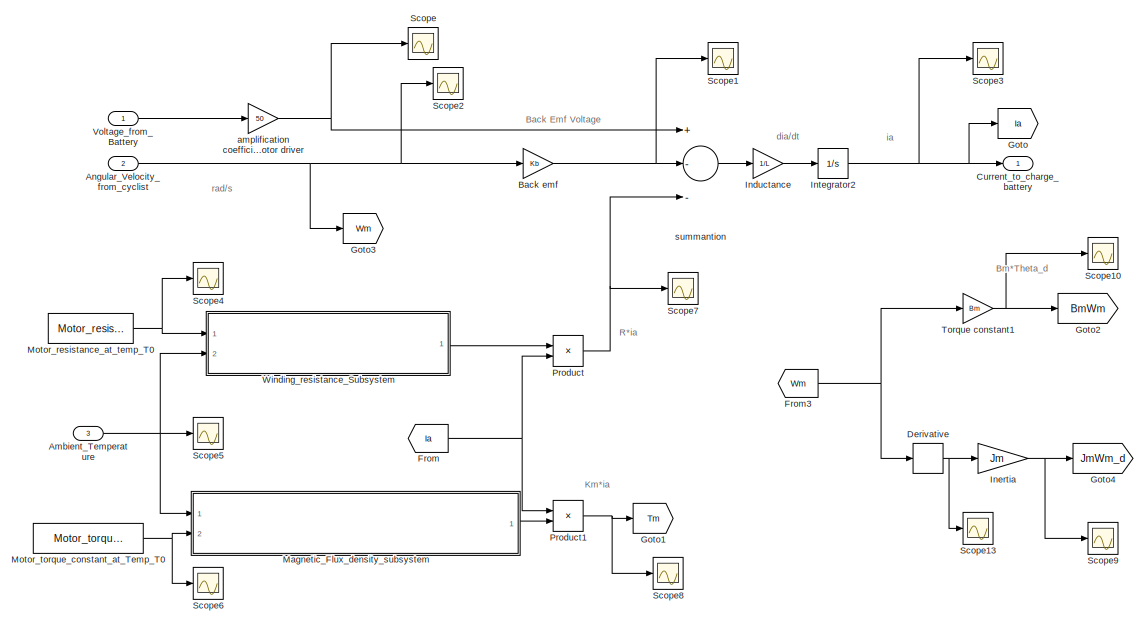
[diagram: Motor_Subsystem - part 1/2, center side, full height]
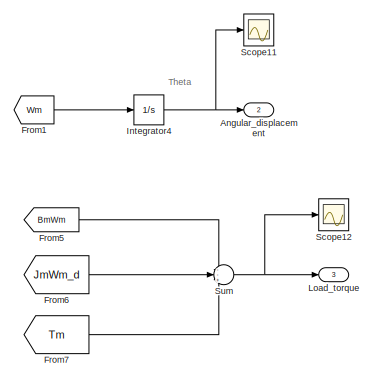
[diagram: Motor_Subsystem - part 2/2, middle right region]
BLOCK [SubSystem] Motor_Subsystem
  Ports = [3, 3]
  RequestExecContextInheritance = off
BLOCK [Gain] Motor_Subsystem/ amplification coefficient of the motor driver
  Gain = 50
  OutDataTypeStr = Inherit: Inherit via internal rule
  ParamDataTypeStr = Inherit: Inherit via internal rule
  SaturateOnIntegerOverflow = off
BLOCK [Inport] Motor_Subsystem/Ambient_Temperature
  IconDisplay = Port number
  Port = 3
BLOCK [Inport] Motor_Subsystem/Angular_Velocity_from_cyclist
  IconDisplay = Port number
  Port = 2
BLOCK [Outport] Motor_Subsystem/Angular_displacement
  IconDisplay = Port number
  Port = 2
  VectorParamsAs1DForOutWhenUnconnected = off
BLOCK [Gain] Motor_Subsystem/Back emf
  Gain = Kb
  OutDataTypeStr = Inherit: Inherit via internal rule
  ParamDataTypeStr = Inherit: Inherit via internal rule
  SaturateOnIntegerOverflow = off
BLOCK [Outport] Motor_Subsystem/Current_to_charge_battery
  IconDisplay = Port number
  VectorParamsAs1DForOutWhenUnconnected = off
BLOCK [Derivative] Motor_Subsystem/Derivative
BLOCK [From] Motor_Subsystem/From
  GotoTag = Ia
BLOCK [From] Motor_Subsystem/From1
  GotoTag = Wm
BLOCK [From] Motor_Subsystem/From3
  GotoTag = Wm
BLOCK [From] Motor_Subsystem/From5
  GotoTag = BmWm
BLOCK [From] Motor_Subsystem/From6
  GotoTag = JmWm_d
BLOCK [From] Motor_Subsystem/From7
  GotoTag = Tm
BLOCK [Goto] Motor_Subsystem/Goto
  GotoTag = Ia
BLOCK [Goto] Motor_Subsystem/Goto1
  GotoTag = Tm
BLOCK [Goto] Motor_Subsystem/Goto2
  GotoTag = BmWm
BLOCK [Goto] Motor_Subsystem/Goto3
  GotoTag = Wm
BLOCK [Goto] Motor_Subsystem/Goto4
  GotoTag = JmWm_d
BLOCK [Gain] Motor_Subsystem/Inductance
  Gain = 1/L
  OutDataTypeStr = Inherit: Inherit via internal rule
  ParamDataTypeStr = Inherit: Inherit via internal rule
  SaturateOnIntegerOverflow = off
BLOCK [Gain] Motor_Subsystem/Inertia
  Gain = Jm
  OutDataTypeStr = Inherit: Inherit via internal rule
  ParamDataTypeStr = Inherit: Inherit via internal rule
  SaturateOnIntegerOverflow = off
BLOCK [Integrator] Motor_Subsystem/Integrator2
  Ports = [1, 1]
BLOCK [Integrator] Motor_Subsystem/Integrator4
  Ports = [1, 1]
BLOCK [Outport] Motor_Subsystem/Load_torque
  IconDisplay = Port number
  Port = 3
BLOCK [SubSystem] Motor_Subsystem/Magnetic_Flux_density_subsystem
  Ports = [2, 1]
  RequestExecContextInheritance = off
BLOCK [Inport] Motor_Subsystem/Magnetic_Flux_density_subsystem/Ambient_temp_T
  IconDisplay = Port number
BLOCK [Constant] Motor_Subsystem/Magnetic_Flux_density_subsystem/Constant
BLOCK [Outport] Motor_Subsystem/Magnetic_Flux_density_subsystem/Motor_Torque_Constant_at_Temp_T
  IconDisplay = Port number
  VectorParamsAs1DForOutWhenUnconnected = off
BLOCK [Inport] Motor_Subsystem/Magnetic_Flux_density_subsystem/Motor_torque_constant_at_Temp_T0
  IconDisplay = Port number
  Port = 2
BLOCK [Product] Motor_Subsystem/Magnetic_Flux_density_subsystem/Product
  InputSameDT = off
  OutDataTypeStr = Inherit: Inherit via internal rule
  Ports = [2, 1]
  RndMeth = Floor
  SaturateOnIntegerOverflow = off
BLOCK [Product] Motor_Subsystem/Magnetic_Flux_density_subsystem/Product1
  InputSameDT = off
  OutDataTypeStr = Inherit: Inherit via internal rule
  Ports = [2, 1]
  RndMeth = Floor
  SaturateOnIntegerOverflow = off
BLOCK [Constant] Motor_Subsystem/Magnetic_Flux_density_subsystem/Reference_temp_T0
  Value = Ref_Temp
BLOCK [Sum] Motor_Subsystem/Magnetic_Flux_density_subsystem/Sum1
  IconShape = round
  InputSameDT = off
  Inputs = +-
  OutDataTypeStr = Inherit: Inherit via internal rule
  Ports = [2, 1]
  SaturateOnIntegerOverflow = off
BLOCK [Sum] Motor_Subsystem/Magnetic_Flux_density_subsystem/Sum2
  IconShape = round
  InputSameDT = off
  OutDataTypeStr = Inherit: Inherit via internal rule
  Ports = [2, 1]
  SaturateOnIntegerOverflow = off
BLOCK [Constant] Motor_Subsystem/Magnetic_Flux_density_subsystem/Temperature_Coefficient
  Value = Alpha_Magnet
BLOCK [Constant] Motor_Subsystem/Motor_resistance_at_temp_T0
  SampleTime = -1
  Value = Motor_resistance
BLOCK [Constant] Motor_Subsystem/Motor_torque_constant_at_Temp_T0
  SampleTime = -1
  Value = Motor_torque_constant
BLOCK [Product] Motor_Subsystem/Product
  InputSameDT = off
  OutDataTypeStr = Inherit: Inherit via internal rule
  Ports = [2, 1]
  RndMeth = Floor
  SaturateOnIntegerOverflow = off
BLOCK [Product] Motor_Subsystem/Product1
  InputSameDT = off
  OutDataTypeStr = Inherit: Inherit via internal rule
  Ports = [2, 1]
  RndMeth = Floor
  SaturateOnIntegerOverflow = off
BLOCK [Scope] Motor_Subsystem/Scope
  Floating = off
  NumInputPorts = 1
  Ports = [1]
  ScopeSpecificationString = Simulink.scopes.TimeScopeBlockCfg('CurrentConfiguration', extmgr.ConfigurationSet(extmgr.Configuration('Core','General UI',true),extmgr.Configuration('Core','Source UI',true),extmgr.Configuration('Sources','WiredSimulink',true,'DataLoggingVariableName','ScopeData1'),extmgr.Configuration('Visuals','Time Domain',true,'SerializedDisplays',{struct('MinYLimReal','26.00000','MaxYLimReal','46.00000','YLa...<+1531ch>
BLOCK [Scope] Motor_Subsystem/Scope1
  Floating = off
  NumInputPorts = 1
  Ports = [1]
  ScopeSpecificationString = Simulink.scopes.TimeScopeBlockCfg('CurrentConfiguration', extmgr.ConfigurationSet(extmgr.Configuration('Core','General UI',true),extmgr.Configuration('Core','Source UI',true),extmgr.Configuration('Sources','WiredSimulink',true,'DataLoggingVariableName','ScopeData2'),extmgr.Configuration('Visuals','Time Domain',true,'SerializedDisplays',{struct('MinYLimReal','6.53892','MaxYLimReal','8.53892','YLabe...<+1365ch>
BLOCK [Scope] Motor_Subsystem/Scope10
  Floating = off
  NumInputPorts = 1
  Ports = [1]
  ScopeSpecificationString = Simulink.scopes.TimeScopeBlockCfg('CurrentConfiguration', extmgr.ConfigurationSet(extmgr.Configuration('Core','General UI',true),extmgr.Configuration('Core','Source UI',true),extmgr.Configuration('Sources','WiredSimulink',true,'DataLoggingVariableName','ScopeData11'),extmgr.Configuration('Visuals','Time Domain',true,'SerializedDisplays',{struct('MinYLimReal','0.00005','MaxYLimReal','0.00025','YLab...<+1401ch>
BLOCK [Scope] Motor_Subsystem/Scope11
  Floating = off
  NumInputPorts = 1
  Ports = [1]
  ScopeSpecificationString = Simulink.scopes.TimeScopeBlockCfg('CurrentConfiguration', extmgr.ConfigurationSet(extmgr.Configuration('Core','General UI',true),extmgr.Configuration('Core','Source UI',true),extmgr.Configuration('Sources','WiredSimulink',true,'DataLoggingVariableName','ScopeData12'),extmgr.Configuration('Visuals','Time Domain',true),extmgr.Configuration('Tools','Plot Navigation',true),extmgr.Configuration('Tools'...<+41ch>
BLOCK [Scope] Motor_Subsystem/Scope12
  Floating = off
  NumInputPorts = 1
  Ports = [1]
  ScopeSpecificationString = Simulink.scopes.TimeScopeBlockCfg('CurrentConfiguration', extmgr.ConfigurationSet(extmgr.Configuration('Core','General UI',true),extmgr.Configuration('Core','Source UI',true),extmgr.Configuration('Sources','WiredSimulink',true,'DataLoggingVariableName','ScopeData13'),extmgr.Configuration('Visuals','Time Domain',true,'SerializedDisplays',{struct('MinYLimReal','-3.82258','MaxYLimReal','34.40321','YL...<+1419ch>
BLOCK [Scope] Motor_Subsystem/Scope13
  Floating = off
  NumInputPorts = 1
  Ports = [1]
  ScopeSpecificationString = Simulink.scopes.TimeScopeBlockCfg('CurrentConfiguration', extmgr.ConfigurationSet(extmgr.Configuration('Core','General UI',true),extmgr.Configuration('Core','Source UI',true),extmgr.Configuration('Sources','WiredSimulink',true,'DataLoggingVariableName','ScopeData14'),extmgr.Configuration('Visuals','Time Domain',true,'SerializedDisplays',{struct('MinYLimReal','-1.00000','MaxYLimReal','1.00000','YLa...<+1370ch>
BLOCK [Scope] Motor_Subsystem/Scope2
  Floating = off
  NumInputPorts = 1
  Ports = [1]
  ScopeSpecificationString = Simulink.scopes.TimeScopeBlockCfg('CurrentConfiguration', extmgr.ConfigurationSet(extmgr.Configuration('Core','General UI',true),extmgr.Configuration('Core','Source UI',true),extmgr.Configuration('Sources','WiredSimulink',true,'DataLoggingVariableName','ScopeData3'),extmgr.Configuration('Visuals','Time Domain',true,'SerializedDisplays',{struct('MinYLimReal','-11.40135','MaxYLimReal','102.61219','Y...<+1517ch>
BLOCK [Scope] Motor_Subsystem/Scope3
  Floating = off
  NumInputPorts = 1
  Ports = [1]
  ScopeSpecificationString = Simulink.scopes.TimeScopeBlockCfg('CurrentConfiguration', extmgr.ConfigurationSet(extmgr.Configuration('Core','General UI',true),extmgr.Configuration('Core','Source UI',true),extmgr.Configuration('Sources','WiredSimulink',true,'DataLoggingVariableName','ScopeData4'),extmgr.Configuration('Visuals','Time Domain',true,'SerializedDisplays',{struct('MinYLimReal','-2.71105','MaxYLimReal','24.39945','YLa...<+1418ch>
BLOCK [Scope] Motor_Subsystem/Scope4
  Floating = off
  NumInputPorts = 1
  Ports = [1]
  ScopeSpecificationString = Simulink.scopes.TimeScopeBlockCfg('CurrentConfiguration', extmgr.ConfigurationSet(extmgr.Configuration('Core','General UI',true),extmgr.Configuration('Core','Source UI',true),extmgr.Configuration('Sources','WiredSimulink',true,'DataLoggingVariableName','ScopeData5'),extmgr.Configuration('Visuals','Time Domain',true,'SerializedDisplays',{struct('MinYLimReal','0.6','MaxYLimReal','20.6','YLabelReal',...<+1391ch>
BLOCK [Scope] Motor_Subsystem/Scope5
  Floating = off
  NumInputPorts = 1
  Ports = [1]
  ScopeSpecificationString = Simulink.scopes.TimeScopeBlockCfg('CurrentConfiguration', extmgr.ConfigurationSet(extmgr.Configuration('Core','General UI',true),extmgr.Configuration('Core','Source UI',true),extmgr.Configuration('Sources','WiredSimulink',true,'DataLoggingVariableName','ScopeData6'),extmgr.Configuration('Visuals','Time Domain',true),extmgr.Configuration('Tools','Plot Navigation',true),extmgr.Configuration('Tools',...<+40ch>
BLOCK [Scope] Motor_Subsystem/Scope6
  Floating = off
  NumInputPorts = 1
  Ports = [1]
  ScopeSpecificationString = Simulink.scopes.TimeScopeBlockCfg('CurrentConfiguration', extmgr.ConfigurationSet(extmgr.Configuration('Core','General UI',true),extmgr.Configuration('Core','Source UI',true),extmgr.Configuration('Sources','WiredSimulink',true,'DataLoggingVariableName','ScopeData7'),extmgr.Configuration('Visuals','Time Domain',true,'SerializedDisplays',{struct('MinYLimReal','0.0402','MaxYLimReal','0.0602','YLabelR...<+1500ch>
BLOCK [Scope] Motor_Subsystem/Scope7
  Floating = off
  NumInputPorts = 1
  Ports = [1]
  ScopeSpecificationString = Simulink.scopes.TimeScopeBlockCfg('CurrentConfiguration', extmgr.ConfigurationSet(extmgr.Configuration('Core','General UI',true),extmgr.Configuration('Core','Source UI',true),extmgr.Configuration('Sources','WiredSimulink',true,'DataLoggingVariableName','ScopeData8'),extmgr.Configuration('Visuals','Time Domain',true,'SerializedDisplays',{struct('MinYLimReal','35.09146','MaxYLimReal','41.04714','YLa...<+1443ch>
BLOCK [Scope] Motor_Subsystem/Scope8
  Floating = off
  NumInputPorts = 1
  Ports = [1]
  ScopeSpecificationString = Simulink.scopes.TimeScopeBlockCfg('CurrentConfiguration', extmgr.ConfigurationSet(extmgr.Configuration('Core','General UI',true),extmgr.Configuration('Core','Source UI',true),extmgr.Configuration('Sources','WiredSimulink',true,'DataLoggingVariableName','ScopeData9'),extmgr.Configuration('Visuals','Time Domain',true,'SerializedDisplays',{struct('MinYLimReal','-0.28234','MaxYLimReal','2.5411','YLabe...<+1415ch>
BLOCK [Scope] Motor_Subsystem/Scope9
  Floating = off
  NumInputPorts = 1
  Ports = [1]
  ScopeSpecificationString = Simulink.scopes.TimeScopeBlockCfg('CurrentConfiguration', extmgr.ConfigurationSet(extmgr.Configuration('Core','General UI',true),extmgr.Configuration('Core','Source UI',true),extmgr.Configuration('Sources','WiredSimulink',true,'DataLoggingVariableName','ScopeData10'),extmgr.Configuration('Visuals','Time Domain',true,'SerializedDisplays',{struct('MinYLimReal','-1.00000','MaxYLimReal','1.00000','YLa...<+1367ch>
BLOCK [Sum] Motor_Subsystem/Sum
  IconShape = round
  InputSameDT = off
  Inputs = --+
  OutDataTypeStr = Inherit: Inherit via internal rule
  Ports = [3, 1]
  SaturateOnIntegerOverflow = off
BLOCK [Gain] Motor_Subsystem/Torque constant1
  Gain = Bm
  OutDataTypeStr = Inherit: Inherit via internal rule
  ParamDataTypeStr = Inherit: Inherit via internal rule
  SaturateOnIntegerOverflow = off
BLOCK [Inport] Motor_Subsystem/Voltage_from_Battery
  IconDisplay = Port number
BLOCK [SubSystem] Motor_Subsystem/Winding_resistance_Subsystem
  Ports = [2, 1]
  RequestExecContextInheritance = off
BLOCK [Inport] Motor_Subsystem/Winding_resistance_Subsystem/Ambient_temp_T
  IconDisplay = Port number
  Port = 2
BLOCK [Constant] Motor_Subsystem/Winding_resistance_Subsystem/Constant
BLOCK [Product] Motor_Subsystem/Winding_resistance_Subsystem/Product
  InputSameDT = off
  OutDataTypeStr = Inherit: Inherit via internal rule
  Ports = [2, 1]
  RndMeth = Floor
  SaturateOnIntegerOverflow = off
BLOCK [Product] Motor_Subsystem/Winding_resistance_Subsystem/Product1
  InputSameDT = off
  OutDataTypeStr = Inherit: Inherit via internal rule
  Ports = [2, 1]
  RndMeth = Floor
  SaturateOnIntegerOverflow = off
BLOCK [Constant] Motor_Subsystem/Winding_resistance_Subsystem/Reference_temp_T0
  Value = Ref_Temp
BLOCK [Constant] Motor_Subsystem/Winding_resistance_Subsystem/Resistance_Temperature_Coefficient
  Value = alpha_Conductor
BLOCK [Outport] Motor_Subsystem/Winding_resistance_Subsystem/Resistance_at_Temp_T
  IconDisplay = Port number
  VectorParamsAs1DForOutWhenUnconnected = off
BLOCK [Inport] Motor_Subsystem/Winding_resistance_Subsystem/Resistance_at_Temp_T0
  IconDisplay = Port number
BLOCK [Sum] Motor_Subsystem/Winding_resistance_Subsystem/Sum1
  IconShape = round
  InputSameDT = off
  Inputs = +-
  OutDataTypeStr = Inherit: Inherit via internal rule
  Ports = [2, 1]
  SaturateOnIntegerOverflow = off
BLOCK [Sum] Motor_Subsystem/Winding_resistance_Subsystem/Sum2
  IconShape = round
  InputSameDT = off
  OutDataTypeStr = Inherit: Inherit via internal rule
  Ports = [2, 1]
  SaturateOnIntegerOverflow = off
BLOCK [Sum] Motor_Subsystem/summantion
  InputSameDT = off
  Inputs = +--
  OutDataTypeStr = Inherit: Inherit via internal rule
  Ports = [3, 1]
  SaturateOnIntegerOverflow = off
BLOCK [Scope] Scope
  Floating = off
  NumInputPorts = 1
  Ports = [1]
  ScopeSpecificationString = Simulink.scopes.TimeScopeBlockCfg('CurrentConfiguration', extmgr.ConfigurationSet(extmgr.Configuration('Core','General UI',true),extmgr.Configuration('Core','Source UI',true),extmgr.Configuration('Sources','WiredSimulink',true,'DataLoggingVariableName','ScopeData1'),extmgr.Configuration('Visuals','Time Domain',true,'SerializedDisplays',{struct('MinYLimReal','26.66608','MaxYLimReal','29.65134','YLa...<+1451ch>
BLOCK [Scope] Scope1
  Floating = off
  NumInputPorts = 1
  Ports = [1]
  ScopeSpecificationString = Simulink.scopes.TimeScopeBlockCfg('CurrentConfiguration', extmgr.ConfigurationSet(extmgr.Configuration('Core','General UI',true),extmgr.Configuration('Core','Source UI',true),extmgr.Configuration('Sources','WiredSimulink',true,'DataLoggingVariableName','ScopeData1'),extmgr.Configuration('Visuals','Time Domain',true,'SerializedDisplays',{struct('MinYLimReal','-11108.66594','MaxYLimReal','99977.9934...<+1406ch>
BLOCK [SubSystem] Signal Builder
  ClipboardFcn = sigbuilder_block('clipboard');
  CloseFcn = sigbuilder_block('close');
  ContinueFcn = sigbuilder_block('continue');
  CopyFcn = sigbuilder_block('copy');
  DeleteFcn = sigbuilder_block('delete');
  LoadFcn = sigbuilder_block('load');
  MaskHideContents = on
  ModelCloseFcn = sigbuilder_block('modelClose');
  NameChangeFcn = sigbuilder_block('namechange');
  OpenFcn = sigbuilder_block('open',[6 30 1012.5 447.75 ]);
  PauseFcn = sigbuilder_block('pause');
  Ports = [0, 2]
  PreSaveFcn = sigbuilder_block('preSave');
  RequestExecContextInheritance = off
  StartFcn = sigbuilder_block('start');
  StopFcn = sigbuilder_block('stop');
  Tag = STV Subsys
BLOCK [Demux] Signal Builder/Demux
  Outputs = 2
  Ports = [1, 2]
  Tag = STV Demux
BLOCK [Outport] Signal Builder/Discharge
  IconDisplay = Port number
  Port = 2
  Tag = STV Outport
BLOCK [FromWorkspace] Signal Builder/FromWs
  SampleTime = 0
  Tag = STV FromWs
  VariableName = tuvar
  ZeroCross = on
BLOCK [Outport] Signal Builder/charge
  IconDisplay = Port number
  Tag = STV Outport
BLOCK [Terminator] Terminator
ANNOTATION Battery_charger: standard charge =0.5C5A = 90mA 0.5 C5A until 4.2V then 0.01 C5A charge time 4hrs standard discharge =0.2C5A = 36mA till 2.75v capacity 180mAh
ANNOTATION Battery_charger/Subsystem: When the battery is discharged, the input Ibatt [A] is positive but it’s converted to negative for the Integrator since it needs to remove charge. When the battery is charged, the input Ibatt [A] is negative and it’s converted to positive for the Integrator since it adds charge.
ANNOTATION Battery_charger/Subsystem: bp.C_Ah = 93.6; // battery capacity bp.SOC_x_pct = [10 12 15 20 25 85 92 95 98 100]; // battery state of charge axis bp.U_y_V = [350 370 385 393 395 405 409 415 430 450]; // battery voltage map bp.UDC_V = 400; // battery nominal voltage bp.SOC0_pct = 100; // battery initial state of charge
ANNOTATION Bike_Mechanics_subsystem: Acceleration
ANNOTATION Bike_Mechanics_subsystem: Distance_Travelled
ANNOTATION Bike_Mechanics_subsystem: Velocity
ANNOTATION Brake_force_Subsystem/Brake_subsystem: Brake Toque T = 2 x µ x Acp x Ptmc x Re
ANNOTATION Brake_force_Subsystem/Brake_subsystem: Mean_Radius_of_Brake_pad
ANNOTATION Brake_force_Subsystem/Brake_subsystem: Tangential_force_btw_Rotor_pad
ANNOTATION Environmental_Subsystem: 0 = Green Light (safe to travel) 1 = Red Light (Bicycle Stop)
ANNOTATION Motor_Subsystem: Back Emf Voltage
ANNOTATION Motor_Subsystem: Bm*Theta_d
ANNOTATION Motor_Subsystem: Km*ia
ANNOTATION Motor_Subsystem: R*ia
ANNOTATION Motor_Subsystem: Theta
ANNOTATION Motor_Subsystem: dia/dt
ANNOTATION Motor_Subsystem: ia
ANNOTATION Motor_Subsystem: rad/s
LINE Battery_Subsystem/Constant2:1 -> Battery_Subsystem/Relational Operator1:2
NET Battery_Subsystem/Diffusion_Voltage_loss_Subsystem/1RC Setup:1 -> Battery_Subsystem/Diffusion_Voltage_loss_Subsystem/Diffusion_Voltage_loss:1, Battery_Subsystem/Diffusion_Voltage_loss_Subsystem/Divide1:2, Battery_Subsystem/Diffusion_Voltage_loss_Subsystem/Scope3:1
NET Battery_Subsystem/Diffusion_Voltage_loss_Subsystem/Constant2:1 -> Battery_Subsystem/Diffusion_Voltage_loss_Subsystem/Divide:2, Battery_Subsystem/Diffusion_Voltage_loss_Subsystem/Product:1
LINE Battery_Subsystem/Diffusion_Voltage_loss_Subsystem/Constant3:1 -> Battery_Subsystem/Diffusion_Voltage_loss_Subsystem/Product:2
NET Battery_Subsystem/Diffusion_Voltage_loss_Subsystem/Divide1:1 -> Battery_Subsystem/Diffusion_Voltage_loss_Subsystem/Scope2:1, Battery_Subsystem/Diffusion_Voltage_loss_Subsystem/Sum1:2
NET Battery_Subsystem/Diffusion_Voltage_loss_Subsystem/Divide:1 -> Battery_Subsystem/Diffusion_Voltage_loss_Subsystem/Scope:1, Battery_Subsystem/Diffusion_Voltage_loss_Subsystem/Sum1:1
LINE Battery_Subsystem/Diffusion_Voltage_loss_Subsystem/Integrator:1 -> Battery_Subsystem/Diffusion_Voltage_loss_Subsystem/1RC Setup:1
NET Battery_Subsystem/Diffusion_Voltage_loss_Subsystem/Product:1 -> Battery_Subsystem/Diffusion_Voltage_loss_Subsystem/Divide1:1, Battery_Subsystem/Diffusion_Voltage_loss_Subsystem/Scope1:1
LINE Battery_Subsystem/Diffusion_Voltage_loss_Subsystem/Sum1:1 -> Battery_Subsystem/Diffusion_Voltage_loss_Subsystem/Integrator:1
NET Battery_Subsystem/Diffusion_Voltage_loss_Subsystem/current_from_DCmotor:1 -> Battery_Subsystem/Diffusion_Voltage_loss_Subsystem/Display1:1, Battery_Subsystem/Diffusion_Voltage_loss_Subsystem/Divide:1
LINE Battery_Subsystem/Diffusion_Voltage_loss_Subsystem:1 -> Battery_Subsystem/Number of cells3:1
LINE Battery_Subsystem/Internal_Resistance_loss_Subsystem/Constant:1 -> Battery_Subsystem/Internal_Resistance_loss_Subsystem/Product1:2
LINE Battery_Subsystem/Internal_Resistance_loss_Subsystem/Product1:1 -> Battery_Subsystem/Internal_Resistance_loss_Subsystem/Internal_Resistance_loss:1
LINE Battery_Subsystem/Internal_Resistance_loss_Subsystem/current_from_DCmotor:1 -> Battery_Subsystem/Internal_Resistance_loss_Subsystem/Product1:1
LINE Battery_Subsystem/Internal_Resistance_loss_Subsystem:1 -> Battery_Subsystem/Number of cells2:1
NET Battery_Subsystem/Number of cells1:1 -> Battery_Subsystem/Scope2:1, Battery_Subsystem/Sum:1
NET Battery_Subsystem/Number of cells2:1 -> Battery_Subsystem/Scope:1, Battery_Subsystem/Sum:3
NET Battery_Subsystem/Number of cells3:1 -> Battery_Subsystem/Scope1:1, Battery_Subsystem/Sum:2
LINE Battery_Subsystem/Number of cells:1 -> Battery_Subsystem/Saturation:1
LINE Battery_Subsystem/Relational Operator1:1 -> Battery_Subsystem/Stop Simulation1:1
NET Battery_Subsystem/Saturation:1 -> Battery_Subsystem/Display9:1, Battery_Subsystem/Scope3:1, Battery_Subsystem/Terminal Voltage:1
LINE Battery_Subsystem/State_of_Charge_Subsystem /1-D Lookup Table1:1 -> Battery_Subsystem/State_of_Charge_Subsystem /Manual Switch:1
LINE Battery_Subsystem/State_of_Charge_Subsystem /1-D Lookup Table:1 -> Battery_Subsystem/State_of_Charge_Subsystem /Manual Switch:2
NET Battery_Subsystem/State_of_Charge_Subsystem /Ah to coulomb:1 -> Battery_Subsystem/State_of_Charge_Subsystem /Divide:2, Battery_Subsystem/State_of_Charge_Subsystem /Scope3:1
LINE Battery_Subsystem/State_of_Charge_Subsystem /Constant:1 -> Battery_Subsystem/State_of_Charge_Subsystem /Ah to coulomb:1
LINE Battery_Subsystem/State_of_Charge_Subsystem /Divide:1 -> Battery_Subsystem/State_of_Charge_Subsystem /Integrator1:1
NET Battery_Subsystem/State_of_Charge_Subsystem /Initial State of charge (100%):1 -> Battery_Subsystem/State_of_Charge_Subsystem /Display2:1, Battery_Subsystem/State_of_Charge_Subsystem /Scope2:1, Battery_Subsystem/State_of_Charge_Subsystem /Sum2:1
NET Battery_Subsystem/State_of_Charge_Subsystem /Integrator1:1 -> Battery_Subsystem/State_of_Charge_Subsystem /Display1:1, Battery_Subsystem/State_of_Charge_Subsystem /SOC:1, Battery_Subsystem/State_of_Charge_Subsystem /Scope1:1, Battery_Subsystem/State_of_Charge_Subsystem /Sum2:2
LINE Battery_Subsystem/State_of_Charge_Subsystem /Manual Switch:1 -> Battery_Subsystem/State_of_Charge_Subsystem /Saturation:1
NET Battery_Subsystem/State_of_Charge_Subsystem /Saturation:1 -> Battery_Subsystem/State_of_Charge_Subsystem /Display:1, Battery_Subsystem/State_of_Charge_Subsystem /Open_circuit_voltage:1, Battery_Subsystem/State_of_Charge_Subsystem /Scope:1
NET Battery_Subsystem/State_of_Charge_Subsystem /Sign conversion:1 -> Battery_Subsystem/State_of_Charge_Subsystem /Display3:1, Battery_Subsystem/State_of_Charge_Subsystem /Divide:1
NET Battery_Subsystem/State_of_Charge_Subsystem /Sum2:1 -> Battery_Subsystem/State_of_Charge_Subsystem /1-D Lookup Table1:1, Battery_Subsystem/State_of_Charge_Subsystem /1-D Lookup Table:1, Battery_Subsystem/State_of_Charge_Subsystem /Scope4:1
LINE Battery_Subsystem/State_of_Charge_Subsystem /current_from_DCmotor:1 -> Battery_Subsystem/State_of_Charge_Subsystem /Sign conversion:1
NET Battery_Subsystem/State_of_Charge_Subsystem :1 -> Battery_Subsystem/Number of cells1:1, Battery_Subsystem/Relational Operator1:1
LINE Battery_Subsystem/State_of_Charge_Subsystem :2 -> Battery_Subsystem/Present SOC:1
LINE Battery_Subsystem/Sum:1 -> Battery_Subsystem/Number of cells:1
NET Battery_Subsystem/current_from_DCmotor:1 -> Battery_Subsystem/Diffusion_Voltage_loss_Subsystem:1, Battery_Subsystem/Internal_Resistance_loss_Subsystem:1, Battery_Subsystem/State_of_Charge_Subsystem :1
LINE Battery_Subsystem:1 -> Motor_Subsystem:1
LINE Battery_charger/Constant1:1 -> Battery_charger/Relational Operator:2
LINE Battery_charger/Constant2:1 -> Battery_charger/Relational Operator1:2
NET Battery_charger/Current_to_charge:1 -> Battery_charger/Diffusion_Voltage_loss_Subsystem:1, Battery_charger/Internal_Resistance_loss_Subsystem:1, Battery_charger/Scope:1, Battery_charger/Subsystem:1
NET Battery_charger/Diffusion_Voltage_loss_Subsystem/1RC Setup:1 -> Battery_charger/Diffusion_Voltage_loss_Subsystem/Diffusion_Voltage_loss:1, Battery_charger/Diffusion_Voltage_loss_Subsystem/Divide1:2
NET Battery_charger/Diffusion_Voltage_loss_Subsystem/Constant2:1 -> Battery_charger/Diffusion_Voltage_loss_Subsystem/Divide:2, Battery_charger/Diffusion_Voltage_loss_Subsystem/Product:1
LINE Battery_charger/Diffusion_Voltage_loss_Subsystem/Constant3:1 -> Battery_charger/Diffusion_Voltage_loss_Subsystem/Product:2
LINE Battery_charger/Diffusion_Voltage_loss_Subsystem/Divide1:1 -> Battery_charger/Diffusion_Voltage_loss_Subsystem/Sum1:2
LINE Battery_charger/Diffusion_Voltage_loss_Subsystem/Divide:1 -> Battery_charger/Diffusion_Voltage_loss_Subsystem/Sum1:1
LINE Battery_charger/Diffusion_Voltage_loss_Subsystem/Integrator:1 -> Battery_charger/Diffusion_Voltage_loss_Subsystem/1RC Setup:1
LINE Battery_charger/Diffusion_Voltage_loss_Subsystem/Product:1 -> Battery_charger/Diffusion_Voltage_loss_Subsystem/Divide1:1
LINE Battery_charger/Diffusion_Voltage_loss_Subsystem/Sum1:1 -> Battery_charger/Diffusion_Voltage_loss_Subsystem/Integrator:1
NET Battery_charger/Diffusion_Voltage_loss_Subsystem/current_from_DCmotor:1 -> Battery_charger/Diffusion_Voltage_loss_Subsystem/Display1:1, Battery_charger/Diffusion_Voltage_loss_Subsystem/Divide:1
NET Battery_charger/Diffusion_Voltage_loss_Subsystem:1 -> Battery_charger/Scope3:1, Battery_charger/Sum:2
LINE Battery_charger/Internal_Resistance_loss_Subsystem/Constant:1 -> Battery_charger/Internal_Resistance_loss_Subsystem/Product1:2
LINE Battery_charger/Internal_Resistance_loss_Subsystem/Product1:1 -> Battery_charger/Internal_Resistance_loss_Subsystem/Internal_Resistance_loss:1
LINE Battery_charger/Internal_Resistance_loss_Subsystem/current_from_DCmotor:1 -> Battery_charger/Internal_Resistance_loss_Subsystem/Product1:1
NET Battery_charger/Internal_Resistance_loss_Subsystem:1 -> Battery_charger/Scope2:1, Battery_charger/Sum:3
LINE Battery_charger/Number of cells:1 -> Battery_charger/Saturation:1
LINE Battery_charger/Relational Operator1:1 -> Battery_charger/Stop Simulation1:1
LINE Battery_charger/Relational Operator:1 -> Battery_charger/Stop Simulation:1
NET Battery_charger/Saturation:1 -> Battery_charger/Battery_voltage:1, Battery_charger/Display9:1, Battery_charger/Scope5:1
LINE Battery_charger/Subsystem/1-D Lookup Table1:1 -> Battery_charger/Subsystem/Manual Switch:2
LINE Battery_charger/Subsystem/1-D Lookup Table:1 -> Battery_charger/Subsystem/Manual Switch:1
NET Battery_charger/Subsystem/Ah to coulomb:1 -> Battery_charger/Subsystem/Divide:2, Battery_charger/Subsystem/Scope2:1
LINE Battery_charger/Subsystem/Constant:1 -> Battery_charger/Subsystem/Ah to coulomb:1
NET Battery_charger/Subsystem/Decimal to %:1 -> Battery_charger/Subsystem/1-D Lookup Table1:1, Battery_charger/Subsystem/1-D Lookup Table:1, Battery_charger/Subsystem/Scope:1, Battery_charger/Subsystem/Soc %:1, Battery_charger/Subsystem/To Workspace:1
LINE Battery_charger/Subsystem/Divide:1 -> Battery_charger/Subsystem/Integrator:1
NET Battery_charger/Subsystem/Integrator:1 -> Battery_charger/Subsystem/Decimal to %:1, Battery_charger/Subsystem/Scope3:1
NET Battery_charger/Subsystem/Manual Switch:1 -> Battery_charger/Subsystem/Open_circuit_Voltage:1, Battery_charger/Subsystem/Scope1:1, Battery_charger/Subsystem/To Workspace1:1
LINE Battery_charger/Subsystem/Sign conversion:1 -> Battery_charger/Subsystem/Divide:1
LINE Battery_charger/Subsystem/current_from_DCmotor:1 -> Battery_charger/Subsystem/Sign conversion:1
NET Battery_charger/Subsystem:1 -> Battery_charger/Display1:1, Battery_charger/Relational Operator:1, Battery_charger/Scope1:1
NET Battery_charger/Subsystem:2 -> Battery_charger/Display:1, Battery_charger/Relational Operator1:1, Battery_charger/Scope4:1, Battery_charger/Sum:1
LINE Battery_charger/Sum:1 -> Battery_charger/Number of cells:1
LINE Battery_charger:1 -> Scope:1
LINE Bike_Mechanics_subsystem/Aerodynamic_Drag_subsystem/.:1 -> Bike_Mechanics_subsystem/Aerodynamic_Drag_subsystem/Product:1
LINE Bike_Mechanics_subsystem/Aerodynamic_Drag_subsystem/Air_density:1 -> Bike_Mechanics_subsystem/Aerodynamic_Drag_subsystem/Product:2
LINE Bike_Mechanics_subsystem/Aerodynamic_Drag_subsystem/Cross sectional area//Reference area:1 -> Bike_Mechanics_subsystem/Aerodynamic_Drag_subsystem/Product:4
LINE Bike_Mechanics_subsystem/Aerodynamic_Drag_subsystem/Drag Coeffient:1 -> Bike_Mechanics_subsystem/Aerodynamic_Drag_subsystem/Product:3
LINE Bike_Mechanics_subsystem/Aerodynamic_Drag_subsystem/Math Function1:1 -> Bike_Mechanics_subsystem/Aerodynamic_Drag_subsystem/Product:5
NET Bike_Mechanics_subsystem/Aerodynamic_Drag_subsystem/Product:1 -> Bike_Mechanics_subsystem/Aerodynamic_Drag_subsystem/Drag_Force :1, Bike_Mechanics_subsystem/Aerodynamic_Drag_subsystem/Drag_force_scope:1
LINE Bike_Mechanics_subsystem/Aerodynamic_Drag_subsystem/Sum:1 -> Bike_Mechanics_subsystem/Aerodynamic_Drag_subsystem/Math Function1:1
LINE Bike_Mechanics_subsystem/Aerodynamic_Drag_subsystem/Vehicle Speed (V):1 -> Bike_Mechanics_subsystem/Aerodynamic_Drag_subsystem/Sum:1
LINE Bike_Mechanics_subsystem/Aerodynamic_Drag_subsystem/Wind Speed (V_w) :1 -> Bike_Mechanics_subsystem/Aerodynamic_Drag_subsystem/Sum:2
NET Bike_Mechanics_subsystem/Aerodynamic_Drag_subsystem:1 -> Bike_Mechanics_subsystem/Display:1, Bike_Mechanics_subsystem/Scope4:1, Bike_Mechanics_subsystem/Sum:2
NET Bike_Mechanics_subsystem/Brake_force :1 -> Bike_Mechanics_subsystem/Scope3:1, Bike_Mechanics_subsystem/Sum1:2
LINE Bike_Mechanics_subsystem/Constant:1 -> Bike_Mechanics_subsystem/Divide:2
NET Bike_Mechanics_subsystem/Divide:1 -> Bike_Mechanics_subsystem/Display3:1, Bike_Mechanics_subsystem/Scope7:1, Bike_Mechanics_subsystem/Sum1:1
LINE Bike_Mechanics_subsystem/From1:1 -> Bike_Mechanics_subsystem/Aerodynamic_Drag_subsystem:1
LINE Bike_Mechanics_subsystem/From:1 -> Bike_Mechanics_subsystem/Inertia_Subsystem:3
LINE Bike_Mechanics_subsystem/Gear ratio btw motor and pedal:1 -> Bike_Mechanics_subsystem/Pedallic_torque_subsystem:2
LINE Bike_Mechanics_subsystem/Gear_ratio:1 -> Bike_Mechanics_subsystem/Pedallic_torque_subsystem:3
LINE Bike_Mechanics_subsystem/Gradient_Resistance_subsystem/Acceleration due to Gravity (g) m//s^2:1 -> Bike_Mechanics_subsystem/Gradient_Resistance_subsystem/Product:2
LINE Bike_Mechanics_subsystem/Gradient_Resistance_subsystem/Angle_of_slope:1 -> Bike_Mechanics_subsystem/Gradient_Resistance_subsystem/Cos:1
NET Bike_Mechanics_subsystem/Gradient_Resistance_subsystem/Cos:1 -> Bike_Mechanics_subsystem/Gradient_Resistance_subsystem/Display:1, Bike_Mechanics_subsystem/Gradient_Resistance_subsystem/Product:3, Bike_Mechanics_subsystem/Gradient_Resistance_subsystem/Scope:1
LINE Bike_Mechanics_subsystem/Gradient_Resistance_subsystem/Cyclist_weight (M) in Kg:1 -> Bike_Mechanics_subsystem/Gradient_Resistance_subsystem/Sum2:1
NET Bike_Mechanics_subsystem/Gradient_Resistance_subsystem/Product:1 -> Bike_Mechanics_subsystem/Gradient_Resistance_subsystem/Gradient_resistance:1, Bike_Mechanics_subsystem/Gradient_Resistance_subsystem/Gradient_resistance_scope:1
LINE Bike_Mechanics_subsystem/Gradient_Resistance_subsystem/Sum2:1 -> Bike_Mechanics_subsystem/Gradient_Resistance_subsystem/Product:1
LINE Bike_Mechanics_subsystem/Gradient_Resistance_subsystem/Vehicle_mass (M) in Kg:1 -> Bike_Mechanics_subsystem/Gradient_Resistance_subsystem/Sum2:2
NET Bike_Mechanics_subsystem/Gradient_Resistance_subsystem:1 -> Bike_Mechanics_subsystem/Display2:1, Bike_Mechanics_subsystem/Scope6:1, Bike_Mechanics_subsystem/Sum:4
NET Bike_Mechanics_subsystem/Inertia_Subsystem/Acceleration:1 -> Bike_Mechanics_subsystem/Inertia_Subsystem/Product1:2, Bike_Mechanics_subsystem/Inertia_Subsystem/Scope1:1
LINE Bike_Mechanics_subsystem/Inertia_Subsystem/Cyclist_weight (M) in Kg:1 -> Bike_Mechanics_subsystem/Inertia_Subsystem/Sum1:1
LINE Bike_Mechanics_subsystem/Inertia_Subsystem/Divide:1 -> Bike_Mechanics_subsystem/Inertia_Subsystem/Sum:2
LINE Bike_Mechanics_subsystem/Inertia_Subsystem/Math Function:1 -> Bike_Mechanics_subsystem/Inertia_Subsystem/Divide:2
NET Bike_Mechanics_subsystem/Inertia_Subsystem/Number of wheels:1 -> Bike_Mechanics_subsystem/Inertia_Subsystem/Display:1, Bike_Mechanics_subsystem/Inertia_Subsystem/Product1:1, Bike_Mechanics_subsystem/Inertia_Subsystem/Scope:1
LINE Bike_Mechanics_subsystem/Inertia_Subsystem/Product1:1 -> Bike_Mechanics_subsystem/Inertia_Subsystem/Inertia_Force:1
LINE Bike_Mechanics_subsystem/Inertia_Subsystem/Sum1:1 -> Bike_Mechanics_subsystem/Inertia_Subsystem/Sum:1
LINE Bike_Mechanics_subsystem/Inertia_Subsystem/Sum:1 -> Bike_Mechanics_subsystem/Inertia_Subsystem/Number of wheels:1
LINE Bike_Mechanics_subsystem/Inertia_Subsystem/Vehicle_mass (M) in Kg:1 -> Bike_Mechanics_subsystem/Inertia_Subsystem/Sum1:2
LINE Bike_Mechanics_subsystem/Inertia_Subsystem/Wheel_Inertia (Iw) in Kg*m^2:1 -> Bike_Mechanics_subsystem/Inertia_Subsystem/Divide:1
LINE Bike_Mechanics_subsystem/Inertia_Subsystem/Wheel_Radius (Rw) in m:1 -> Bike_Mechanics_subsystem/Inertia_Subsystem/Math Function:1
NET Bike_Mechanics_subsystem/Inertia_Subsystem:1 -> Bike_Mechanics_subsystem/Display5:1, Bike_Mechanics_subsystem/Scope11:1, Bike_Mechanics_subsystem/Sum:5
LINE Bike_Mechanics_subsystem/Inertia_of_wheel:1 -> Bike_Mechanics_subsystem/Inertia_Subsystem:1
NET Bike_Mechanics_subsystem/Integrator1:1 -> Bike_Mechanics_subsystem/Distance_Travelled:1, Bike_Mechanics_subsystem/Scope2:1
NET Bike_Mechanics_subsystem/Integrator:1 -> Bike_Mechanics_subsystem/Goto:1, Bike_Mechanics_subsystem/Integrator1:1, Bike_Mechanics_subsystem/Scope1:1, Bike_Mechanics_subsystem/Vehicle_speed:1
NET Bike_Mechanics_subsystem/Pedallic_torque_subsystem/Divide1:1 -> Bike_Mechanics_subsystem/Pedallic_torque_subsystem/Divide:1, Bike_Mechanics_subsystem/Pedallic_torque_subsystem/Scope:1
NET Bike_Mechanics_subsystem/Pedallic_torque_subsystem/Divide:1 -> Bike_Mechanics_subsystem/Pedallic_torque_subsystem/Drive_Force:1, Bike_Mechanics_subsystem/Pedallic_torque_subsystem/Scope2:1
LINE Bike_Mechanics_subsystem/Pedallic_torque_subsystem/Gear_ratio:1 -> Bike_Mechanics_subsystem/Pedallic_torque_subsystem/Divide1:2
LINE Bike_Mechanics_subsystem/Pedallic_torque_subsystem/Pedalling_Torque:1 -> Bike_Mechanics_subsystem/Pedallic_torque_subsystem/Sum:1
NET Bike_Mechanics_subsystem/Pedallic_torque_subsystem/Sum:1 -> Bike_Mechanics_subsystem/Pedallic_torque_subsystem/Divide1:1, Bike_Mechanics_subsystem/Pedallic_torque_subsystem/Scope1:1
LINE Bike_Mechanics_subsystem/Pedallic_torque_subsystem/Torque_from_motor:1 -> Bike_Mechanics_subsystem/Pedallic_torque_subsystem/Sum:2
LINE Bike_Mechanics_subsystem/Pedallic_torque_subsystem/Wheel_radius (Rw) :1 -> Bike_Mechanics_subsystem/Pedallic_torque_subsystem/Divide:2
NET Bike_Mechanics_subsystem/Pedallic_torque_subsystem:1 -> Bike_Mechanics_subsystem/Scope10:1, Bike_Mechanics_subsystem/Sum:1
LINE Bike_Mechanics_subsystem/Pedalling_Torque:1 -> Bike_Mechanics_subsystem/Pedallic_torque_subsystem:1
LINE Bike_Mechanics_subsystem/Rolling_Resistance_subsystem/Acceleration_due_to_Gravity (g) m//s^2:1 -> Bike_Mechanics_subsystem/Rolling_Resistance_subsystem/Product:3
LINE Bike_Mechanics_subsystem/Rolling_Resistance_subsystem/Angle_of_slope:1 -> Bike_Mechanics_subsystem/Rolling_Resistance_subsystem/Cos:1
LINE Bike_Mechanics_subsystem/Rolling_Resistance_subsystem/Cos:1 -> Bike_Mechanics_subsystem/Rolling_Resistance_subsystem/Product:4
LINE Bike_Mechanics_subsystem/Rolling_Resistance_subsystem/Cyclist_weight (M) in Kg:1 -> Bike_Mechanics_subsystem/Rolling_Resistance_subsystem/Sum2:1
LINE Bike_Mechanics_subsystem/Rolling_Resistance_subsystem/Dynamic_Friction_Coefficient:1 -> Bike_Mechanics_subsystem/Rolling_Resistance_subsystem/Sum:2
NET Bike_Mechanics_subsystem/Rolling_Resistance_subsystem/Product:1 -> Bike_Mechanics_subsystem/Rolling_Resistance_subsystem/Rolling_resistance:1, Bike_Mechanics_subsystem/Rolling_Resistance_subsystem/Rolling_resistance_scope:1
LINE Bike_Mechanics_subsystem/Rolling_Resistance_subsystem/Static_Friction_Coefficient:1 -> Bike_Mechanics_subsystem/Rolling_Resistance_subsystem/Sum:1
LINE Bike_Mechanics_subsystem/Rolling_Resistance_subsystem/Sum2:1 -> Bike_Mechanics_subsystem/Rolling_Resistance_subsystem/Product:2
LINE Bike_Mechanics_subsystem/Rolling_Resistance_subsystem/Sum:1 -> Bike_Mechanics_subsystem/Rolling_Resistance_subsystem/Product:1
LINE Bike_Mechanics_subsystem/Rolling_Resistance_subsystem/Vehicle_mass (M) in Kg:1 -> Bike_Mechanics_subsystem/Rolling_Resistance_subsystem/Sum2:2
NET Bike_Mechanics_subsystem/Rolling_Resistance_subsystem:1 -> Bike_Mechanics_subsystem/Display1:1, Bike_Mechanics_subsystem/Scope5:1, Bike_Mechanics_subsystem/Sum:3
LINE Bike_Mechanics_subsystem/Slope %:1 -> Bike_Mechanics_subsystem/Subsystem2:1
LINE Bike_Mechanics_subsystem/Subsystem2/Constant1:1 -> Bike_Mechanics_subsystem/Subsystem2/Divide:2
LINE Bike_Mechanics_subsystem/Subsystem2/Constant:1 -> Bike_Mechanics_subsystem/Subsystem2/Divide:1
LINE Bike_Mechanics_subsystem/Subsystem2/Divide:1 -> Bike_Mechanics_subsystem/Subsystem2/Product:2
LINE Bike_Mechanics_subsystem/Subsystem2/Gain:1 -> Bike_Mechanics_subsystem/Subsystem2/Trigonometric Function:1
LINE Bike_Mechanics_subsystem/Subsystem2/Product:1 -> Bike_Mechanics_subsystem/Subsystem2/alpha:1
LINE Bike_Mechanics_subsystem/Subsystem2/Slope %:1 -> Bike_Mechanics_subsystem/Subsystem2/Gain:1
LINE Bike_Mechanics_subsystem/Subsystem2/Trigonometric Function:1 -> Bike_Mechanics_subsystem/Subsystem2/Product:1
NET Bike_Mechanics_subsystem/Subsystem2:1 -> Bike_Mechanics_subsystem/Display4:1, Bike_Mechanics_subsystem/Gradient_Resistance_subsystem:1, Bike_Mechanics_subsystem/Rolling_Resistance_subsystem:1, Bike_Mechanics_subsystem/Scope9:1
NET Bike_Mechanics_subsystem/Sum1:1 -> Bike_Mechanics_subsystem/Acceleration:1, Bike_Mechanics_subsystem/Goto1:1, Bike_Mechanics_subsystem/Integrator:1, Bike_Mechanics_subsystem/Scope:1
NET Bike_Mechanics_subsystem/Sum:1 -> Bike_Mechanics_subsystem/Divide:1, Bike_Mechanics_subsystem/Scope8:1
LINE Bike_Mechanics_subsystem/Torque_from_motor:1 -> Bike_Mechanics_subsystem/Gear ratio btw motor and pedal:1
LINE Bike_Mechanics_subsystem/Wheel_radius (Rw) :1 -> Bike_Mechanics_subsystem/Inertia_Subsystem:2
LINE Bike_Mechanics_subsystem/Wind Speed:1 -> Bike_Mechanics_subsystem/Aerodynamic_Drag_subsystem:2
LINE Bike_Mechanics_subsystem:1 -> Environmental_Subsystem:1
NET Bike_Mechanics_subsystem:2 -> Brake_force_Subsystem:2, Gain:1
LINE Brake_force_Subsystem/Brake_Distance_Subsystem/Brake_Force:1 -> Brake_force_Subsystem/Brake_Distance_Subsystem/Sum:1
LINE Brake_force_Subsystem/Brake_Distance_Subsystem/Constant:1 -> Brake_force_Subsystem/Brake_Distance_Subsystem/Sum:2
LINE Brake_force_Subsystem/Brake_Distance_Subsystem/Divide:1 -> Brake_force_Subsystem/Brake_Distance_Subsystem/Brake_Distance:1
LINE Brake_force_Subsystem/Brake_Distance_Subsystem/Gain:1 -> Brake_force_Subsystem/Brake_Distance_Subsystem/Divide:1
LINE Brake_force_Subsystem/Brake_Distance_Subsystem/Product:1 -> Brake_force_Subsystem/Brake_Distance_Subsystem/Gain:1
LINE Brake_force_Subsystem/Brake_Distance_Subsystem/Square:1 -> Brake_force_Subsystem/Brake_Distance_Subsystem/Product:2
LINE Brake_force_Subsystem/Brake_Distance_Subsystem/Sum:1 -> Brake_force_Subsystem/Brake_Distance_Subsystem/Divide:2
LINE Brake_force_Subsystem/Brake_Distance_Subsystem/Vehicle_mass (M) in Kg:1 -> Brake_force_Subsystem/Brake_Distance_Subsystem/Product:1
LINE Brake_force_Subsystem/Brake_Distance_Subsystem/Vehicle_speed:1 -> Brake_force_Subsystem/Brake_Distance_Subsystem/Square:1
LINE Brake_force_Subsystem/Brake_Distance_Subsystem:1 -> Brake_force_Subsystem/Display:1
LINE Brake_force_Subsystem/Brake_subsystem/Brake_coefficient_of_friction:1 -> Brake_force_Subsystem/Brake_subsystem/Product:3
LINE Brake_force_Subsystem/Brake_subsystem/Disc_Brake_Pad_Area:1 -> Brake_force_Subsystem/Brake_subsystem/Square:1
LINE Brake_force_Subsystem/Brake_subsystem/Gain1:1 -> Brake_force_Subsystem/Brake_subsystem/Sum:2
NET Brake_force_Subsystem/Brake_subsystem/Gain:1 -> Brake_force_Subsystem/Brake_subsystem/Product1:2, Brake_force_Subsystem/Brake_subsystem/Scope2:1
LINE Brake_force_Subsystem/Brake_subsystem/Inner_Radius_of_Brake_pad:1 -> Brake_force_Subsystem/Brake_subsystem/Gain1:1
NET Brake_force_Subsystem/Brake_subsystem/Max_Pressure_applied_on_brake_lever:1 -> Brake_force_Subsystem/Brake_subsystem/Product:1, Brake_force_Subsystem/Brake_subsystem/Scope3:1
LINE Brake_force_Subsystem/Brake_subsystem/Number_of_brake_pad_in_Disc_Assembly:1 -> Brake_force_Subsystem/Brake_subsystem/Product:4
LINE Brake_force_Subsystem/Brake_subsystem/Outer_Radius_of_Brake_pad:1 -> Brake_force_Subsystem/Brake_subsystem/Sum:1
NET Brake_force_Subsystem/Brake_subsystem/Product1:1 -> Brake_force_Subsystem/Brake_subsystem/Brake_Torque:1, Brake_force_Subsystem/Brake_subsystem/Scope:1
LINE Brake_force_Subsystem/Brake_subsystem/Product2:1 -> Brake_force_Subsystem/Brake_subsystem/Product:2
NET Brake_force_Subsystem/Brake_subsystem/Product:1 -> Brake_force_Subsystem/Brake_subsystem/Brake_force:1, Brake_force_Subsystem/Brake_subsystem/Product1:1, Brake_force_Subsystem/Brake_subsystem/Scope1:1
LINE Brake_force_Subsystem/Brake_subsystem/Square:1 -> Brake_force_Subsystem/Brake_subsystem/Product2:2
LINE Brake_force_Subsystem/Brake_subsystem/Sum:1 -> Brake_force_Subsystem/Brake_subsystem/Gain:1
LINE Brake_force_Subsystem/Brake_subsystem/const :1 -> Brake_force_Subsystem/Brake_subsystem/Product2:1
LINE Brake_force_Subsystem/Brake_subsystem:1 -> Brake_force_Subsystem/Brake_Torque:1
NET Brake_force_Subsystem/Brake_subsystem:2 -> Brake_force_Subsystem/Brake_Distance_Subsystem:1, Brake_force_Subsystem/Brake_Force:1
LINE Brake_force_Subsystem/Braking_Pressure_from_cyclist:1 -> Brake_force_Subsystem/Brake_subsystem:1
NET Brake_force_Subsystem/Inner_Radius_of_Brake_pad:1 -> Brake_force_Subsystem/Brake_subsystem:3, Brake_force_Subsystem/Thermal_Gradient_Subsystem:2
NET Brake_force_Subsystem/Outer_Radius_of_Brake_pad:1 -> Brake_force_Subsystem/Brake_subsystem:2, Brake_force_Subsystem/Thermal_Gradient_Subsystem:1
LINE Brake_force_Subsystem/Thermal_Gradient_Subsystem/Ambient_Temp:1 -> Brake_force_Subsystem/Thermal_Gradient_Subsystem/Sum:2
LINE Brake_force_Subsystem/Thermal_Gradient_Subsystem/Constant:1 -> Brake_force_Subsystem/Thermal_Gradient_Subsystem/Product1:2
LINE Brake_force_Subsystem/Thermal_Gradient_Subsystem/Divide1:1 -> Brake_force_Subsystem/Thermal_Gradient_Subsystem/Thermal_Gradient:1
LINE Brake_force_Subsystem/Thermal_Gradient_Subsystem/Divide:1 -> Brake_force_Subsystem/Thermal_Gradient_Subsystem/T=5 sec for stopping vehicle:1
LINE Brake_force_Subsystem/Thermal_Gradient_Subsystem/Inner_Radius_of_Brake_pad:1 -> Brake_force_Subsystem/Thermal_Gradient_Subsystem/Square1:1
LINE Brake_force_Subsystem/Thermal_Gradient_Subsystem/Mass_of_the_Disc:1 -> Brake_force_Subsystem/Thermal_Gradient_Subsystem/Product:1
LINE Brake_force_Subsystem/Thermal_Gradient_Subsystem/Outer_Radius_of_Brake_pad:1 -> Brake_force_Subsystem/Thermal_Gradient_Subsystem/Square:1
LINE Brake_force_Subsystem/Thermal_Gradient_Subsystem/Product1:1 -> Brake_force_Subsystem/Thermal_Gradient_Subsystem/Divide:2
LINE Brake_force_Subsystem/Thermal_Gradient_Subsystem/Product:1 -> Brake_force_Subsystem/Thermal_Gradient_Subsystem/Divide:1
LINE Brake_force_Subsystem/Thermal_Gradient_Subsystem/Specific_Heat_capacity:1 -> Brake_force_Subsystem/Thermal_Gradient_Subsystem/Product:2
LINE Brake_force_Subsystem/Thermal_Gradient_Subsystem/Square1:1 -> Brake_force_Subsystem/Thermal_Gradient_Subsystem/Sum1:2
LINE Brake_force_Subsystem/Thermal_Gradient_Subsystem/Square:1 -> Brake_force_Subsystem/Thermal_Gradient_Subsystem/Sum1:1
LINE Brake_force_Subsystem/Thermal_Gradient_Subsystem/Sum1:1 -> Brake_force_Subsystem/Thermal_Gradient_Subsystem/Product1:1
LINE Brake_force_Subsystem/Thermal_Gradient_Subsystem/Sum:1 -> Brake_force_Subsystem/Thermal_Gradient_Subsystem/Product:3
LINE Brake_force_Subsystem/Thermal_Gradient_Subsystem/Surface_temp_of_brake:1 -> Brake_force_Subsystem/Thermal_Gradient_Subsystem/Sum:1
LINE Brake_force_Subsystem/Thermal_Gradient_Subsystem/T=5 sec for stopping vehicle:1 -> Brake_force_Subsystem/Thermal_Gradient_Subsystem/Divide1:1
LINE Brake_force_Subsystem/Thermal_Gradient_Subsystem/Thermal_Conductivity:1 -> Brake_force_Subsystem/Thermal_Gradient_Subsystem/Divide1:2
LINE Brake_force_Subsystem/Thermal_Gradient_Subsystem:1 -> Brake_force_Subsystem/Display1:1
LINE Brake_force_Subsystem/Vehicle Speed (V) in m//s:1 -> Brake_force_Subsystem/Brake_Distance_Subsystem:2
LINE Brake_force_Subsystem:1 -> Terminator:1
LINE Brake_force_Subsystem:2 -> Bike_Mechanics_subsystem:6
LINE Constant6:1 -> Driver_subsystem:2
LINE Constant7:1 -> Driver_subsystem:1
LINE Driver_subsystem/Braking_Pressure_applied_by_cyclist:1 -> Driver_subsystem/Braking_Pressure_from_cyclist:1
LINE Driver_subsystem/Constant4:1 -> Driver_subsystem/Divide:3
LINE Driver_subsystem/Constant:1 -> Driver_subsystem/Sum:2
LINE Driver_subsystem/Cos:1 -> Driver_subsystem/Sum:1
LINE Driver_subsystem/Crank_Length:1 -> Driver_subsystem/Product:2
NET Driver_subsystem/Divide:1 -> Driver_subsystem/Pedal_Force:1, Driver_subsystem/Product:1, Driver_subsystem/Scope:1
LINE Driver_subsystem/Driving_Force_applied_on_crank:1 -> Driver_subsystem/Divide:1
LINE Driver_subsystem/From Workspace:1 -> Driver_subsystem/Gain:1
LINE Driver_subsystem/Gain:1 -> Driver_subsystem/Cos:1
LINE Driver_subsystem/Gear_change:1 -> Driver_subsystem/Gear_change_to_wheel:1
NET Driver_subsystem/Product:1 -> Driver_subsystem/Pedal_Torque:1, Driver_subsystem/Scope1:1
NET Driver_subsystem/Sum:1 -> Driver_subsystem/Divide:2, Driver_subsystem/Scope2:1
LINE Driver_subsystem:1 -> Bike_Mechanics_subsystem:1
LINE Driver_subsystem:3 -> Brake_force_Subsystem:1
LINE Driver_subsystem:4 -> GearBox_Subsystem:1
NET Environmental_Subsystem/Ambient_Temperature_lookup_table:1 -> Environmental_Subsystem/Ambient_Temperature:1, Environmental_Subsystem/Scope:1
NET Environmental_Subsystem/Chart:1 -> Environmental_Subsystem/Scope3:1, Environmental_Subsystem/Traffic_signal_info:1
NET Environmental_Subsystem/Distance_Travelled:1 -> Environmental_Subsystem/Ambient_Temperature_lookup_table:1, Environmental_Subsystem/Slope_profile_in%:1, Environmental_Subsystem/Traffic_signal_Lookup_table:1, Environmental_Subsystem/Wind_Speed_lookup_table:1
NET Environmental_Subsystem/Slope_profile_in%:1 -> Environmental_Subsystem/Scope1:1, Environmental_Subsystem/Slope_Profile:1
NET Environmental_Subsystem/Traffic_signal_Lookup_table:1 -> Environmental_Subsystem/Chart:1, Environmental_Subsystem/Scope4:1
NET Environmental_Subsystem/Wind_Speed_lookup_table:1 -> Environmental_Subsystem/Scope2:1, Environmental_Subsystem/Wind_Speed:1
LINE Environmental_Subsystem:1 -> Motor_Subsystem:3
LINE Environmental_Subsystem:2 -> Bike_Mechanics_subsystem:5
LINE Environmental_Subsystem:3 -> Bike_Mechanics_subsystem:4
LINE Gain:1 -> Motor_Subsystem:2
LINE GearBox_Subsystem/Crankset_Teeth:1 -> GearBox_Subsystem/Divide:2
LINE GearBox_Subsystem/Divide:1 -> GearBox_Subsystem/Gear_ratio:1
LINE GearBox_Subsystem/Gear_Box_Subsystem/Gear Box:1 -> GearBox_Subsystem/Gear_Box_Subsystem/Switch Case Action Subsystem:ifaction
LINE GearBox_Subsystem/Gear_Box_Subsystem/Gear Box:2 -> GearBox_Subsystem/Gear_Box_Subsystem/Switch Case Action Subsystem1:ifaction
LINE GearBox_Subsystem/Gear_Box_Subsystem/Gear Box:3 -> GearBox_Subsystem/Gear_Box_Subsystem/Switch Case Action Subsystem2:ifaction
LINE GearBox_Subsystem/Gear_Box_Subsystem/Gear Box:4 -> GearBox_Subsystem/Gear_Box_Subsystem/Switch Case Action Subsystem3:ifaction
LINE GearBox_Subsystem/Gear_Box_Subsystem/Gear Box:5 -> GearBox_Subsystem/Gear_Box_Subsystem/Switch Case Action Subsystem4:ifaction
LINE GearBox_Subsystem/Gear_Box_Subsystem/Gear Box:6 -> GearBox_Subsystem/Gear_Box_Subsystem/Switch Case Action Subsystem5:ifaction
LINE GearBox_Subsystem/Gear_Box_Subsystem/Gear Box:7 -> GearBox_Subsystem/Gear_Box_Subsystem/Switch Case Action Subsystem6:ifaction
LINE GearBox_Subsystem/Gear_Box_Subsystem/Gear Box:8 -> GearBox_Subsystem/Gear_Box_Subsystem/Switch Case Action Subsystem7:ifaction
LINE GearBox_Subsystem/Gear_Box_Subsystem/Gear Box:9 -> GearBox_Subsystem/Gear_Box_Subsystem/Switch Case Action Subsystem8:ifaction
LINE GearBox_Subsystem/Gear_Box_Subsystem/Gear_Number:1 -> GearBox_Subsystem/Gear_Box_Subsystem/Gear Box:1
NET GearBox_Subsystem/Gear_Box_Subsystem/Merge:1 -> GearBox_Subsystem/Gear_Box_Subsystem/Display12:1, GearBox_Subsystem/Gear_Box_Subsystem/Final_Gear_Teeth:1
LINE GearBox_Subsystem/Gear_Box_Subsystem/Switch Case Action Subsystem/Constant:1 -> GearBox_Subsystem/Gear_Box_Subsystem/Switch Case Action Subsystem/Out1:1
LINE GearBox_Subsystem/Gear_Box_Subsystem/Switch Case Action Subsystem1/Constant:1 -> GearBox_Subsystem/Gear_Box_Subsystem/Switch Case Action Subsystem1/Out1:1
LINE GearBox_Subsystem/Gear_Box_Subsystem/Switch Case Action Subsystem1:1 -> GearBox_Subsystem/Gear_Box_Subsystem/Merge:2
LINE GearBox_Subsystem/Gear_Box_Subsystem/Switch Case Action Subsystem2/Constant:1 -> GearBox_Subsystem/Gear_Box_Subsystem/Switch Case Action Subsystem2/Out1:1
LINE GearBox_Subsystem/Gear_Box_Subsystem/Switch Case Action Subsystem2:1 -> GearBox_Subsystem/Gear_Box_Subsystem/Merge:3
LINE GearBox_Subsystem/Gear_Box_Subsystem/Switch Case Action Subsystem3/Constant:1 -> GearBox_Subsystem/Gear_Box_Subsystem/Switch Case Action Subsystem3/Out1:1
LINE GearBox_Subsystem/Gear_Box_Subsystem/Switch Case Action Subsystem3:1 -> GearBox_Subsystem/Gear_Box_Subsystem/Merge:4
LINE GearBox_Subsystem/Gear_Box_Subsystem/Switch Case Action Subsystem4/Constant:1 -> GearBox_Subsystem/Gear_Box_Subsystem/Switch Case Action Subsystem4/Out1:1
LINE GearBox_Subsystem/Gear_Box_Subsystem/Switch Case Action Subsystem4:1 -> GearBox_Subsystem/Gear_Box_Subsystem/Merge:5
LINE GearBox_Subsystem/Gear_Box_Subsystem/Switch Case Action Subsystem5/Constant:1 -> GearBox_Subsystem/Gear_Box_Subsystem/Switch Case Action Subsystem5/Out1:1
LINE GearBox_Subsystem/Gear_Box_Subsystem/Switch Case Action Subsystem5:1 -> GearBox_Subsystem/Gear_Box_Subsystem/Merge:6
LINE GearBox_Subsystem/Gear_Box_Subsystem/Switch Case Action Subsystem6/Constant:1 -> GearBox_Subsystem/Gear_Box_Subsystem/Switch Case Action Subsystem6/Out1:1
LINE GearBox_Subsystem/Gear_Box_Subsystem/Switch Case Action Subsystem6:1 -> GearBox_Subsystem/Gear_Box_Subsystem/Merge:7
LINE GearBox_Subsystem/Gear_Box_Subsystem/Switch Case Action Subsystem7/Constant:1 -> GearBox_Subsystem/Gear_Box_Subsystem/Switch Case Action Subsystem7/Out1:1
LINE GearBox_Subsystem/Gear_Box_Subsystem/Switch Case Action Subsystem7:1 -> GearBox_Subsystem/Gear_Box_Subsystem/Merge:8
LINE GearBox_Subsystem/Gear_Box_Subsystem/Switch Case Action Subsystem8/Constant:1 -> GearBox_Subsystem/Gear_Box_Subsystem/Switch Case Action Subsystem8/Out1:1
LINE GearBox_Subsystem/Gear_Box_Subsystem/Switch Case Action Subsystem8:1 -> GearBox_Subsystem/Gear_Box_Subsystem/Merge:9
LINE GearBox_Subsystem/Gear_Box_Subsystem/Switch Case Action Subsystem:1 -> GearBox_Subsystem/Gear_Box_Subsystem/Merge:1
LINE GearBox_Subsystem/Gear_Box_Subsystem:1 -> GearBox_Subsystem/Divide:1
LINE GearBox_Subsystem/Gear_number_from_Driver:1 -> GearBox_Subsystem/Gear_Box_Subsystem:1
LINE GearBox_Subsystem:1 -> Bike_Mechanics_subsystem:3
LINE Gear_Number from 1-9:1 -> Driver_subsystem:3
LINE Manual Switch:1 -> Battery_charger:1
NET Motor_Subsystem/ amplification coefficient of the motor driver:1 -> Motor_Subsystem/Scope:1, Motor_Subsystem/summantion:1
NET Motor_Subsystem/Ambient_Temperature:1 -> Motor_Subsystem/Magnetic_Flux_density_subsystem:1, Motor_Subsystem/Scope5:1, Motor_Subsystem/Winding_resistance_Subsystem:2
NET Motor_Subsystem/Angular_Velocity_from_cyclist:1 -> Motor_Subsystem/Back emf:1, Motor_Subsystem/Goto3:1, Motor_Subsystem/Scope2:1
NET Motor_Subsystem/Back emf:1 -> Motor_Subsystem/Scope1:1, Motor_Subsystem/summantion:2
NET Motor_Subsystem/Derivative:1 -> Motor_Subsystem/Inertia:1, Motor_Subsystem/Scope13:1
LINE Motor_Subsystem/From1:1 -> Motor_Subsystem/Integrator4:1
NET Motor_Subsystem/From3:1 -> Motor_Subsystem/Derivative:1, Motor_Subsystem/Torque constant1:1
LINE Motor_Subsystem/From5:1 -> Motor_Subsystem/Sum:1
LINE Motor_Subsystem/From6:1 -> Motor_Subsystem/Sum:2
LINE Motor_Subsystem/From7:1 -> Motor_Subsystem/Sum:3
NET Motor_Subsystem/From:1 -> Motor_Subsystem/Product1:1, Motor_Subsystem/Product:2
LINE Motor_Subsystem/Inductance:1 -> Motor_Subsystem/Integrator2:1
NET Motor_Subsystem/Inertia:1 -> Motor_Subsystem/Goto4:1, Motor_Subsystem/Scope9:1
NET Motor_Subsystem/Integrator2:1 -> Motor_Subsystem/Current_to_charge_battery:1, Motor_Subsystem/Goto:1, Motor_Subsystem/Scope3:1
NET Motor_Subsystem/Integrator4:1 -> Motor_Subsystem/Angular_displacement:1, Motor_Subsystem/Scope11:1
LINE Motor_Subsystem/Magnetic_Flux_density_subsystem/Ambient_temp_T:1 -> Motor_Subsystem/Magnetic_Flux_density_subsystem/Sum1:1
LINE Motor_Subsystem/Magnetic_Flux_density_subsystem/Constant:1 -> Motor_Subsystem/Magnetic_Flux_density_subsystem/Sum2:1
LINE Motor_Subsystem/Magnetic_Flux_density_subsystem/Motor_torque_constant_at_Temp_T0:1 -> Motor_Subsystem/Magnetic_Flux_density_subsystem/Product1:1
LINE Motor_Subsystem/Magnetic_Flux_density_subsystem/Product1:1 -> Motor_Subsystem/Magnetic_Flux_density_subsystem/Motor_Torque_Constant_at_Temp_T:1
LINE Motor_Subsystem/Magnetic_Flux_density_subsystem/Product:1 -> Motor_Subsystem/Magnetic_Flux_density_subsystem/Sum2:2
LINE Motor_Subsystem/Magnetic_Flux_density_subsystem/Reference_temp_T0:1 -> Motor_Subsystem/Magnetic_Flux_density_subsystem/Sum1:2
LINE Motor_Subsystem/Magnetic_Flux_density_subsystem/Sum1:1 -> Motor_Subsystem/Magnetic_Flux_density_subsystem/Product:2
LINE Motor_Subsystem/Magnetic_Flux_density_subsystem/Sum2:1 -> Motor_Subsystem/Magnetic_Flux_density_subsystem/Product1:2
LINE Motor_Subsystem/Magnetic_Flux_density_subsystem/Temperature_Coefficient:1 -> Motor_Subsystem/Magnetic_Flux_density_subsystem/Product:1
LINE Motor_Subsystem/Magnetic_Flux_density_subsystem:1 -> Motor_Subsystem/Product1:2
NET Motor_Subsystem/Motor_resistance_at_temp_T0:1 -> Motor_Subsystem/Scope4:1, Motor_Subsystem/Winding_resistance_Subsystem:1
NET Motor_Subsystem/Motor_torque_constant_at_Temp_T0:1 -> Motor_Subsystem/Magnetic_Flux_density_subsystem:2, Motor_Subsystem/Scope6:1
NET Motor_Subsystem/Product1:1 -> Motor_Subsystem/Goto1:1, Motor_Subsystem/Scope8:1
NET Motor_Subsystem/Product:1 -> Motor_Subsystem/Scope7:1, Motor_Subsystem/summantion:3
NET Motor_Subsystem/Sum:1 -> Motor_Subsystem/Load_torque:1, Motor_Subsystem/Scope12:1
NET Motor_Subsystem/Torque constant1:1 -> Motor_Subsystem/Goto2:1, Motor_Subsystem/Scope10:1
LINE Motor_Subsystem/Voltage_from_Battery:1 -> Motor_Subsystem/ amplification coefficient of the motor driver:1
LINE Motor_Subsystem/Winding_resistance_Subsystem/Ambient_temp_T:1 -> Motor_Subsystem/Winding_resistance_Subsystem/Sum1:1
LINE Motor_Subsystem/Winding_resistance_Subsystem/Constant:1 -> Motor_Subsystem/Winding_resistance_Subsystem/Sum2:1
LINE Motor_Subsystem/Winding_resistance_Subsystem/Product1:1 -> Motor_Subsystem/Winding_resistance_Subsystem/Resistance_at_Temp_T:1
LINE Motor_Subsystem/Winding_resistance_Subsystem/Product:1 -> Motor_Subsystem/Winding_resistance_Subsystem/Sum2:2
LINE Motor_Subsystem/Winding_resistance_Subsystem/Reference_temp_T0:1 -> Motor_Subsystem/Winding_resistance_Subsystem/Sum1:2
LINE Motor_Subsystem/Winding_resistance_Subsystem/Resistance_Temperature_Coefficient:1 -> Motor_Subsystem/Winding_resistance_Subsystem/Product:1
LINE Motor_Subsystem/Winding_resistance_Subsystem/Resistance_at_Temp_T0:1 -> Motor_Subsystem/Winding_resistance_Subsystem/Product1:1
LINE Motor_Subsystem/Winding_resistance_Subsystem/Sum1:1 -> Motor_Subsystem/Winding_resistance_Subsystem/Product:2
LINE Motor_Subsystem/Winding_resistance_Subsystem/Sum2:1 -> Motor_Subsystem/Winding_resistance_Subsystem/Product1:2
LINE Motor_Subsystem/Winding_resistance_Subsystem:1 -> Motor_Subsystem/Product:1
LINE Motor_Subsystem/summantion:1 -> Motor_Subsystem/Inductance:1
LINE Motor_Subsystem:1 -> Battery_Subsystem:1
LINE Motor_Subsystem:2 -> Scope1:1
LINE Motor_Subsystem:3 -> Bike_Mechanics_subsystem:2
LINE Signal Builder:1 -> Manual Switch:1
LINE Signal Builder:2 -> Manual Switch:2
note: NET lines group one-source signal fan-out (src -> all destinations, sorted); 1:1 wires keep LINE
CHART Environmental_Subsystem/Chart states=0 transitions=8
